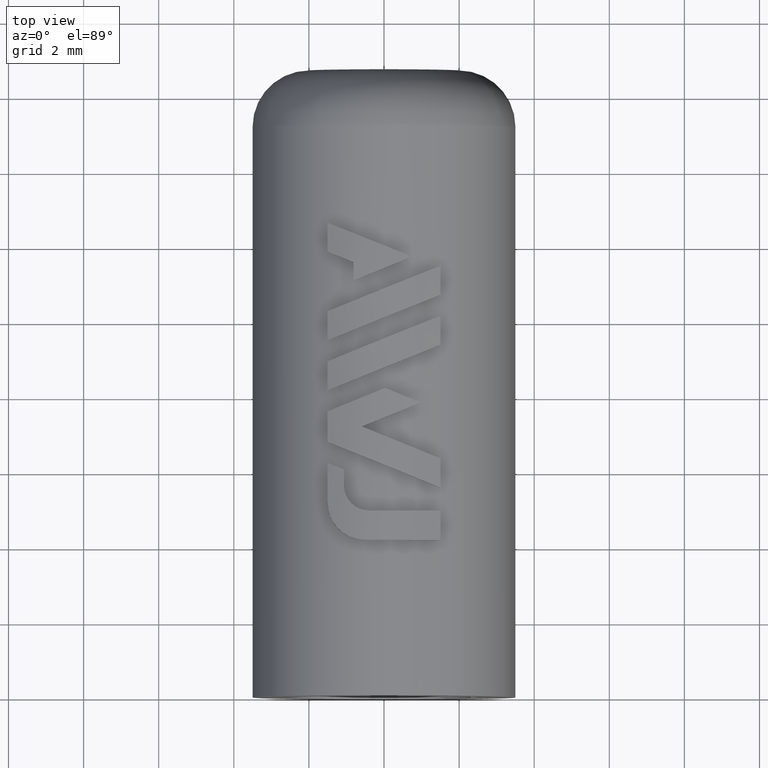
[diagram: clean part render]
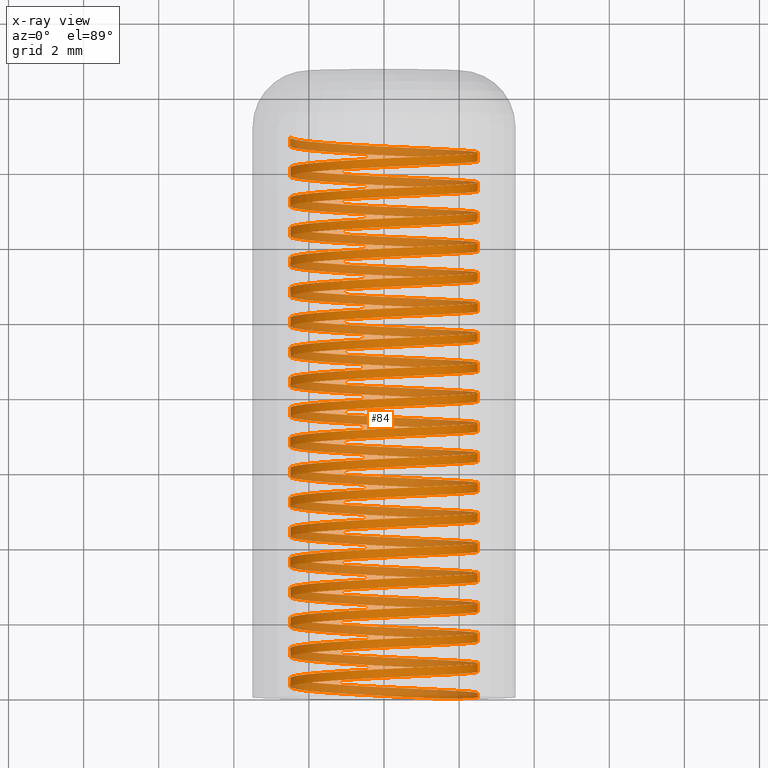
[diagram: x-ray — body ghosted, one internal face saturated and labeled with its STEP entity id]
A machine part, top view, then the same camera in x-ray: the body is ghosted and one INTERNAL B-rep face — a face not visible from any outside direction — is saturated and labeled: STEP entity #84.
In plain terms, the highlighted face is a freeform B-spline surface patch.
Its self-contained STEP definition (entity closure, byte-faithful):
#84=ADVANCED_FACE('',(#169),#170,.F.);
#169=FACE_OUTER_BOUND('',#341,.T.);
#170=B_SPLINE_SURFACE_WITH_KNOTS('',1,3,((#342,#343,#344,#345,#346,#347,#348,#349,#350,#351,#352,#353,#354,#355,#356,#357,#358,#359,#360,#361,#362,#363,#364,#365,#366,#367,#368,#369,#370,#371,#372,#373,#374,#375,#376,#377,#378,#379,#380,#381,#382,#383,#384,#385,#386,#387,#388,#389,#390,#391,#392,#393,#394,#395,#396,#397,#398,#399,#400,#401,#402,#403,#404,#405,#406,#407,#408,#409,#410,#411,#412,#413,#414,#415,#416,#417,#418,#419,#420,#421,#422,#423,#424,#425,#426,#427,#428,#429,#430,#431,#432,#433,#434,#435,#436,#437,#438,#439,#440,#441,#442,#443,#444,#445,#446,#447,#448,#449,#450,#451,#452,#453,#454,#455,#456,#457,#458,#459,#460,#461,#462,#463,#464,#465,#466,#467,#468,#469,#470,#471,#472,#473,#474,#475,#476,#477,#478,#479,#480,#481,#482,#483,#484,#485,#486,#487,#488,#489,#490,#491,#492,#493,#494,#495,#496,#497,#498,#499,#500,#501,#502,#503,#504,#505,#506,#507,#508,#509,#510,#511,#512,#513,#514,#515,#516,#517,#518,#519,#520,#521,#522,#523,#524,#525,#526,#527,#528,#529,#530,#531,#532,#533,#534,#535,#536,#537,#538,#539,#540,#541,#542,#543,#544,#545,#546,#547,#548,#549,#550,#551,#552,#553,#554,#555,#556,#557,#558,#559,#560,#561,#562,#563,#564,#565,#566,#567,#568,#569,#570,#571,#572,#573,#574,#575,#576,#577,#578,#579,#580,#581,#582,#583,#584,#585,#586,#587,#588,#589,#590,#591,#592,#593,#594,#595,#596,#597,#598,#599,#600,#601,#602),(#603,#604,#605,#606,#607,#608,#609,#610,#611,#612,#613,#614,#615,#616,#617,#618,#619,#620,#621,#622,#623,#624,#625,#626,#627,#628,#629,#630,#631,#632,#633,#634,#635,#636,#637,#638,#639,#640,#641,#642,#643,#644,#645,#646,#647,#648,#649,#650,#651,#652,#653,#654,#655,#656,#657,#658,#659,#660,#661,#662,#663,#664,#665,#666,#667,#668,#669,#670,#671,#672,#673,#674,#675,#676,#677,#678,#679,#680,#681,#682,#683,#684,#685,#686,#687,#688,#689,#690,#691,#692,#693,#694,#695,#696,#697,#698,#699,#700,#701,#702,#703,#704,#705,#706,#707,#708,#709,#710,#711,#712,#713,#714,#715,#716,#717,#718,#719,#720,#721,#722,#723,#724,#725,#726,#727,#728,#729,#730,#731,#732,#733,#734,#735,#736,#737,#738,#739,#740,#741,#742,#743,#744,#745,#746,#747,#748,#749,#750,#751,#752,#753,#754,#755,#756,#757,#758,#759,#760,#761,#762,#763,#764,#765,#766,#767,#768,#769,#770,#771,#772,#773,#774,#775,#776,#777,#778,#779,#780,#781,#782,#783,#784,#785,#786,#787,#788,#789,#790,#791,#792,#793,#794,#795,#796,#797,#798,#799,#800,#801,#802,#803,#804,#805,#806,#807,#808,#809,#810,#811,#812,#813,#814,#815,#816,#817,#818,#819,#820,#821,#822,#823,#824,#825,#826,#827,#828,#829,#830,#831,#832,#833,#834,#835,#836,#837,#838,#839,#840,#841,#842,#843,#844,#845,#846,#847,#848,#849,#850,#851,#852,#853,#854,#855,#856,#857,#858,#859,#860,#861,#862,#863)),.UNSPECIFIED.,.F.,.F.,.F.,(2,2),(4,1,1,1,1,1,1,1,1,1,1,1,1,1,1,1,1,1,1,1,1,1,1,1,1,1,1,1,1,1,1,1,1,1,1,1,1,1,1,1,1,1,1,1,1,1,1,1,1,1,1,1,1,1,1,1,1,1,1,1,1,1,1,1,1,1,1,1,1,1,1,1,1,1,1,1,1,1,1,1,1,1,1,1,1,1,1,1,1,1,1,1,1,1,1,1,1,1,1,1,1,1,1,1,1,1,1,1,1,1,1,1,1,1,1,1,1,1,1,1,1,1,1,1,1,1,1,1,1,1,1,1,1,1,1,1,1,1,1,1,1,1,1,1,1,1,1,1,1,1,1,1,1,1,1,1,1,1,1,1,1,1,1,1,1,1,1,1,1,1,1,1,1,1,1,1,1,1,1,1,1,1,1,1,1,1,1,1,1,1,1,1,1,1,1,1,1,1,1,1,1,1,1,1,1,1,1,1,1,1,1,1,1,1,1,1,1,1,1,1,1,1,1,1,1,1,1,1,1,1,1,1,1,1,1,1,1,1,1,1,1,1,1,1,1,1,1,1,1,1,1,1,1,1,1,1,1,1,4),(0.666666666666667,1.0),(0.0,1.0,2.0,3.0,4.0,5.0,6.0,7.0,8.0,9.0,10.0,11.0,12.0,13.0,14.0,15.0,16.0,17.0,18.0,19.0,20.0,21.0,22.0,23.0,24.0,25.0,26.0,27.0,28.0,29.0,30.0,31.0,32.0,33.0,34.0,35.0,36.0,37.0,38.0,39.0,40.0,41.0,42.0,43.0,44.0,45.0,46.0,47.0,48.0,49.0,50.0,51.0,52.0,53.0,54.0,55.0,56.0,57.0,58.0,59.0,60.0,61.0,62.0,63.0,64.0,65.0,66.0,67.0,68.0,69.0,70.0,71.0,72.0,73.0,74.0,75.0,76.0,77.0,78.0,79.0,80.0,81.0,82.0,83.0,84.0,85.0,86.0,87.0,88.0,89.0,90.0,91.0,92.0,93.0,94.0,95.0,96.0,97.0,98.0,99.0,100.0,101.0,102.0,103.0,104.0,105.0,106.0,107.0,108.0,109.0,110.0,111.0,112.0,113.0,114.0,115.0,116.0,117.0,118.0,119.0,120.0,121.0,122.0,123.0,124.0,125.0,126.0,127.0,128.0,129.0,130.0,131.0,132.0,133.0,134.0,135.0,136.0,137.0,138.0,139.0,140.0,141.0,142.0,143.0,144.0,145.0,146.0,147.0,148.0,149.0,150.0,151.0,152.0,153.0,154.0,155.0,156.0,157.0,158.0,159.0,160.0,161.0,162.0,163.0,164.0,165.0,166.0,167.0,168.0,169.0,170.0,171.0,172.0,173.0,174.0,175.0,176.0,177.0,178.0,179.0,180.0,181.0,182.0,183.0,184.0,185.0,186.0,187.0,188.0,189.0,190.0,191.0,192.0,193.0,194.0,195.0,196.0,197.0,198.0,199.0,200.0,201.0,202.0,203.0,204.0,205.0,206.0,207.0,208.0,209.0,210.0,211.0,212.0,213.0,214.0,215.0,216.0,217.0,218.0,219.0,220.0,221.0,222.0,223.0,224.0,225.0,226.0,227.0,228.0,229.0,230.0,231.0,232.0,233.0,234.0,235.0,236.0,237.0,238.0,239.0,240.0,241.0,242.0,243.0,244.0,245.0,246.0,247.0,248.0,249.0,250.0,251.0,252.0,253.0,254.0,255.0,256.0,257.0,258.0),.UNSPECIFIED.);
#341=EDGE_LOOP('',(#2081,#2082,#2083,#2084,#2085));
#342=CARTESIAN_POINT('',(2.5,-0.115470053837911,1.11130722679764E-15));
#343=CARTESIAN_POINT('',(2.5,-0.0965095014151939,-0.372291178013164));
#344=CARTESIAN_POINT('',(2.3279629432803,-0.0580310412304931,-1.1275117598274));
#345=CARTESIAN_POINT('',(1.60531309120325,-0.000761379849518503,-2.02704356236244));
#346=CARTESIAN_POINT('',(0.562274746167707,0.0566283306243802,-2.52425246725875));
#347=CARTESIAN_POINT('',(-0.592971884662868,0.113985873976696,-2.51708750563572));
#348=CARTESIAN_POINT('',(-1.62988084134524,0.171352036517328,-2.00773598350181));
#349=CARTESIAN_POINT('',(-2.34150516333854,0.228715889542024,-1.0976491409926));
#350=CARTESIAN_POINT('',(-2.58582548405207,0.286080361403634,0.0314893521037565));
#351=CARTESIAN_POINT('',(-2.31408076993124,0.343444667447242,1.15434626685317));
#352=CARTESIAN_POINT('',(-1.5805045995768,0.40080901792196,2.04682435330777));
#353=CARTESIAN_POINT('',(-0.531500006820571,0.458173356491323,2.53080869360479));
#354=CARTESIAN_POINT('',(0.623578431343326,0.515537698250733,2.50970810724906));
#355=CARTESIAN_POINT('',(1.65420651730026,0.572902039155369,1.9877337991868));
#356=CARTESIAN_POINT('',(2.35469716795477,0.630266380289041,1.06905851223616));
#357=CARTESIAN_POINT('',(2.58525031336131,0.687630721361343,-0.0629735896245747));
#358=CARTESIAN_POINT('',(2.2998534252611,0.744995062450089,-1.18243776921877));
#359=CARTESIAN_POINT('',(1.55546444432912,0.802359403534429,-2.06591752452629));
#360=CARTESIAN_POINT('',(0.50064442775524,0.85972374461995,-2.53709282697598));
#361=CARTESIAN_POINT('',(-0.65409144916688,0.917088085705155,-2.50192910208429));
#362=CARTESIAN_POINT('',(-1.67828735347211,0.974452426790444,-1.96744413260112));
#363=CARTESIAN_POINT('',(-2.36753990169979,1.03181676787571,-1.04030748800058));
#364=CARTESIAN_POINT('',(-2.58429186253862,1.08918110896098,0.0944480012885464));
#365=CARTESIAN_POINT('',(-2.28528507221259,1.14654545004625,1.21035407813296));
#366=CARTESIAN_POINT('',(-1.53019366080112,1.20390979113153,2.08470434742552));
#367=CARTESIAN_POINT('',(-0.469714617684625,1.2612741322168,2.54300079309153));
#368=CARTESIAN_POINT('',(0.684507484461931,1.31863847330207,2.49377913204966));
#369=CARTESIAN_POINT('',(1.70211934901626,1.37600281438734,1.94686275259332));
#370=CARTESIAN_POINT('',(2.38003159894585,1.43336715547261,1.0114022166033));
#371=CARTESIAN_POINT('',(2.58295023727948,1.49073149655788,-0.125908409046612));
#372=CARTESIAN_POINT('',(2.27037787863585,1.54809583764316,-1.23809092716641));
#373=CARTESIAN_POINT('',(1.50469599458151,1.60546017872842,-2.10318207001228));
#374=CARTESIAN_POINT('',(0.438715162758258,1.66282451981369,-2.54853170702205));
#375=CARTESIAN_POINT('',(-0.714822027439712,1.72018886089897,-2.48525940795277));
#376=CARTESIAN_POINT('',(-1.7256989703484,1.77755320198424,-1.92599271012879));
#377=CARTESIAN_POINT('',(-2.39217040754185,1.83491754306951,-0.982346984019327));
#378=CARTESIAN_POINT('',(-2.5812256365074,1.89228188415479,0.157350148292649));
#379=CARTESIAN_POINT('',(-2.25513405482904,1.94964622524005,1.26564420374808));
#380=CARTESIAN_POINT('',(-1.4789752262239,2.00701056632533,2.1213479525874));
#381=CARTESIAN_POINT('',(-0.407650659283109,2.0643749074106,2.55368474869488));
#382=CARTESIAN_POINT('',(0.745030583345556,2.12173924849587,2.47637119301823));
#383=CARTESIAN_POINT('',(1.74902272130457,2.17910358958114,1.90483709962063));
#384=CARTESIAN_POINT('',(2.40395452765967,2.23646793066641,0.95314609828469));
#385=CARTESIAN_POINT('',(2.57911831592995,2.29383227175169,-0.188768557141958));
#386=CARTESIAN_POINT('',(2.23955586100267,2.35119661283696,-1.29300982253785));
#387=CARTESIAN_POINT('',(1.45303516936136,2.40856095392222,-2.13919930168505));
#388=CARTESIAN_POINT('',(0.37652571321095,2.4659252950075,-2.55845915406554));
#389=CARTESIAN_POINT('',(-0.775128673139553,2.52328963609276,-2.46711580510678));
#390=CARTESIAN_POINT('',(-1.77208714365885,2.58065397717804,-1.88339905782332));
#391=CARTESIAN_POINT('',(-2.41538221206109,2.63801831826331,-0.923803889031461));
#392=CARTESIAN_POINT('',(-2.57662858800074,2.69538265934859,0.220158977169052));
#393=CARTESIAN_POINT('',(-2.22364560694447,2.75274700043386,1.32018372601973));
#394=CARTESIAN_POINT('',(-1.42687967014097,2.81011134151913,2.15673347047547));
#395=CARTESIAN_POINT('',(-0.345344939455356,2.8674756826044,2.56285421523023));
#396=CARTESIAN_POINT('',(0.805111834160669,2.92484002368967,2.45749461652009));
#397=CARTESIAN_POINT('',(1.79488881763609,2.98220436477494,1.86168176336765));
#398=CARTESIAN_POINT('',(2.42645176635677,3.03956870586021,0.894324706845826));
#399=CARTESIAN_POINT('',(2.57375682187315,3.09693304694548,-0.251516754098349));
#400=CARTESIAN_POINT('',(2.20740565167694,3.15429738803076,-1.34716188510346));
#401=CARTESIAN_POINT('',(1.4005126066536,3.21166172911603,-2.17394785915741));
#402=CARTESIAN_POINT('',(0.314112961207547,3.2690260702013,-2.5668692805307));
#403=CARTESIAN_POINT('',(-0.834975620788426,3.32639041128657,-2.4475090537973));
#404=CARTESIAN_POINT('',(-1.81742436241903,3.38375475237184,-1.8396884362893));
#405=CARTESIAN_POINT('',(-2.43716154925756,3.44111909345711,-0.864712922623039));
#406=CARTESIAN_POINT('',(-2.57050344334563,3.49848343454238,0.282837238494274));
#407=CARTESIAN_POINT('',(-2.19083840310754,3.55584777562765,1.37394029972193));
#408=CARTESIAN_POINT('',(-1.37393788835891,3.61321211671292,2.19083991534357));
#409=CARTESIAN_POINT('',(-0.282834409250841,3.6705764577982,2.57050375465093));
#410=CARTESIAN_POINT('',(0.864715605102054,3.72794079888347,2.43716059750353));
#411=CARTESIAN_POINT('',(1.8396904366495,3.78530513996874,1.8174223375515));
#412=CARTESIAN_POINT('',(2.44750997281779,3.84266948105401,0.834972926919309));
#413=CARTESIAN_POINT('',(2.56686893479844,3.90003382213928,-0.314115786450648));
#414=CARTESIAN_POINT('',(2.17394631767172,3.95739816322456,-1.40051499942425));
#415=CARTESIAN_POINT('',(1.3471594555056,4.01476250430982,-2.20740713443909));
#416=CARTESIAN_POINT('',(0.251513921274075,4.0721268453951,-2.57375709870534));
#417=CARTESIAN_POINT('',(-0.894327377537023,4.12949118648037,-2.42645078201032));
#418=CARTESIAN_POINT('',(-1.86168373892393,4.18685552756564,-1.79488676856146));
#419=CARTESIAN_POINT('',(-2.45749550267078,4.24421986865091,-0.805109129300893));
#420=CARTESIAN_POINT('',(-2.56285383512227,4.30158420973618,0.345347760279241));
#421=CARTESIAN_POINT('',(-2.1567318999687,4.35894855082145,1.42688204396446));
#422=CARTESIAN_POINT('',(-1.32018127854726,4.41631289190672,2.22364706001291));
#423=CARTESIAN_POINT('',(-0.22015614118397,4.473677232992,2.57662883031875));
#424=CARTESIAN_POINT('',(0.923806547538859,4.53104157407727,2.41538119526817));
#425=CARTESIAN_POINT('',(1.88340100828275,4.58840591516254,1.77208507068095));
#426=CARTESIAN_POINT('',(2.46711665825628,4.64577025624781,0.77512595769018));
#427=CARTESIAN_POINT('',(2.55845873963824,4.70313459733308,-0.376528529197345));
#428=CARTESIAN_POINT('',(2.13919770239006,4.76049893841835,-1.4530375238857));
#429=CARTESIAN_POINT('',(1.29300735755366,4.81786327950363,-2.23955728416196));
#430=CARTESIAN_POINT('',(0.188765718416558,4.8752276205889,-2.57911852369786));
#431=CARTESIAN_POINT('',(-0.953148744214111,4.93259196167417,-2.40395347857105));
#432=CARTESIAN_POINT('',(-1.90483902469401,4.98995630275944,-1.74902062473075));
#433=CARTESIAN_POINT('',(-2.47637201304005,5.04732064384471,-0.745027857709194));
#434=CARTESIAN_POINT('',(-2.55368430000967,5.10468498492998,0.407653470014509));
#435=CARTESIAN_POINT('',(-2.1213463247413,5.16204932601525,1.47897756110002));
#436=CARTESIAN_POINT('',(-1.26564172161765,5.21941366710053,2.25513544786815));
#437=CARTESIAN_POINT('',(-0.157347307247823,5.2767780081858,2.58122580969442));
#438=CARTESIAN_POINT('',(0.982349616978449,5.33414234927107,2.39216932631306));
#439=CARTESIAN_POINT('',(1.92599460953072,5.39150669035634,1.72569685048949));
#440=CARTESIAN_POINT('',(2.48526019472531,5.44887103144161,0.714819292020495));
#441=CARTESIAN_POINT('',(2.54853122414549,5.50623537252688,-0.438717967817904));
#442=CARTESIAN_POINT('',(2.10318041385644,5.56359971361215,-1.50469830946321));
#443=CARTESIAN_POINT('',(1.23808842825778,5.62096405469743,-2.27037924134823));
#444=CARTESIAN_POINT('',(0.125905566103609,5.67832839578269,-2.58295037585992));
#445=CARTESIAN_POINT('',(-1.01140483620173,5.73569273686797,-2.38003048573721));
#446=CARTESIAN_POINT('',(-1.94686462604217,5.79305707795324,-1.7021172061866));
#447=CARTESIAN_POINT('',(-2.49377988545628,5.85042141903851,-0.684504739665439));
#448=CARTESIAN_POINT('',(-2.54300027609519,5.90778576012378,0.469717416656612));
#449=CARTESIAN_POINT('',(-2.0847026632055,5.96515010120906,1.53019595534514));
#450=CARTESIAN_POINT('',(-1.21035156281663,6.02251444229432,2.2852864043962));
#451=CARTESIAN_POINT('',(-0.094445156868906,6.0798787833796,2.58429196649194));
#452=CARTESIAN_POINT('',(1.04031009384994,6.13724312446487,2.36753875667637));
#453=CARTESIAN_POINT('',(1.96744597981903,6.19460746555014,1.67828518798942));
#454=CARTESIAN_POINT('',(2.50192982201352,6.25197180663541,0.654088695400084));
#455=CARTESIAN_POINT('',(2.53709227593562,6.30933614772068,-0.500647220224587));
#456=CARTESIAN_POINT('',(2.06591581249518,6.36670048880595,-1.55546671819527));
#457=CARTESIAN_POINT('',(1.18243523785517,6.42406482989123,-2.29985472671844));
#458=CARTESIAN_POINT('',(0.0629707441966326,6.48142917097649,-2.58525038267207));
#459=CARTESIAN_POINT('',(-1.06906110412395,6.53879351206177,-2.35469599128636));
#460=CARTESIAN_POINT('',(-1.9877356192522,6.59615785314704,-1.65420432948499));
#461=CARTESIAN_POINT('',(-2.50970879600126,6.65352219423231,-0.623575669028766));
#462=CARTESIAN_POINT('',(-2.53080809964935,6.71088653531758,0.531502792542108));
#463=CARTESIAN_POINT('',(-2.04682264726259,6.76825087640286,1.58050685110306));
#464=CARTESIAN_POINT('',(-1.15434359254289,6.82561521748812,2.31408204826145));
#465=CARTESIAN_POINT('',(-0.0314869948160053,6.8829795585734,2.5858254822954));
#466=CARTESIAN_POINT('',(1.09765360409497,6.94034389965867,2.34150409377137));
#467=CARTESIAN_POINT('',(2.00773053598519,6.99770824074394,1.62987820115598));
#468=CARTESIAN_POINT('',(2.51711565402658,7.05507258182921,0.592970184735363));
#469=CARTESIAN_POINT('',(2.52414867899478,7.11243692291449,-0.562279558635775));
#470=CARTESIAN_POINT('',(2.02742599846231,7.16980126399975,-1.60531264135368));
#471=CARTESIAN_POINT('',(1.12608079204417,7.22716560508503,-2.32796625953212));
#472=CARTESIAN_POINT('',(-1.42315940070619E-06,7.28452994617029,-2.58601718009157));
#473=CARTESIAN_POINT('',(-1.12608335433664,7.34189428725557,-2.32796502010161));
#474=CARTESIAN_POINT('',(-2.02742776536022,7.39925862834084,-1.60531040985139));
#475=CARTESIAN_POINT('',(-2.52414929787038,7.45662296942611,-0.562276780412654));
#476=CARTESIAN_POINT('',(-2.51711500136807,7.51398731051138,0.592972955216834));
#477=CARTESIAN_POINT('',(-2.00772874204656,7.57135165159665,1.62988041097835));
#478=CARTESIAN_POINT('',(-1.09765102690063,7.62871599268193,2.34150530191045));
#479=CARTESIAN_POINT('',(0.031489840923793,7.6860803337672,2.58582544763744));
#480=CARTESIAN_POINT('',(1.15434613955359,7.74344467485247,2.31408077772331));
#481=CARTESIAN_POINT('',(2.04682438685783,7.80080901593774,1.58050459825172));
#482=CARTESIAN_POINT('',(2.53080868465026,7.85817335702301,0.531500006989259));
#483=CARTESIAN_POINT('',(2.5097081096566,7.91553769810828,-0.623578431357776));
#484=CARTESIAN_POINT('',(1.98773379853885,7.97290203919355,-1.65420651729979));
#485=CARTESIAN_POINT('',(1.06905851240987,8.03026638027883,-2.35469716795489));
#486=CARTESIAN_POINT('',(-0.0629735896714213,8.0876307213641,-2.58525031336129));
#487=CARTESIAN_POINT('',(-1.18243776920641,8.14499506244937,-2.29985342526104));
#488=CARTESIAN_POINT('',(-2.06591752452981,8.20235940353464,-1.5554644443289));
#489=CARTESIAN_POINT('',(-2.53709282697511,8.25972374461991,-0.500644427755071));
#490=CARTESIAN_POINT('',(-2.50192910208448,8.31708808570518,0.654091449167129));
#491=CARTESIAN_POINT('',(-1.96744413260093,8.37445242679045,1.67828735347227));
#492=CARTESIAN_POINT('',(-1.04030748800037,8.43181676787573,2.3675399016999));
#493=CARTESIAN_POINT('',(0.0944480012887809,8.489181108961,2.58429186253861));
#494=CARTESIAN_POINT('',(1.21035407813313,8.54654545004627,2.28528507221249));
#495=CARTESIAN_POINT('',(2.08470434742567,8.60390979113154,1.53019366080091));
#496=CARTESIAN_POINT('',(2.54300079309157,8.66127413221681,0.46971461768443));
#497=CARTESIAN_POINT('',(2.4937791320496,8.71863847330208,-0.684507484462179));
#498=CARTESIAN_POINT('',(1.94686275259319,8.77600281438735,-1.70211934901641));
#499=CARTESIAN_POINT('',(1.01140221660306,8.83336715547262,-2.38003159894595));
#500=CARTESIAN_POINT('',(-0.125908409046816,8.8907314965579,-2.58295023727948));
#501=CARTESIAN_POINT('',(-1.23809092716665,8.94809583764317,-2.27037787863571));
#502=CARTESIAN_POINT('',(-2.10318207001237,9.00546017872844,-1.50469599458138));
#503=CARTESIAN_POINT('',(-2.5485317070221,9.06282451981371,-0.438715162758032));
#504=CARTESIAN_POINT('',(-2.48525940795272,9.12018886089898,0.71482202743989));
#505=CARTESIAN_POINT('',(-1.92599271012863,9.17755320198425,1.72569897034857));
#506=CARTESIAN_POINT('',(-0.982346984019149,9.23491754306953,2.39217040754192));
#507=CARTESIAN_POINT('',(0.157350148292883,9.29228188415479,2.58122563650739));
#508=CARTESIAN_POINT('',(1.26564420374826,9.34964622524007,2.25513405482892));
#509=CARTESIAN_POINT('',(2.1213479525875,9.40701056632533,1.47897522622376));
#510=CARTESIAN_POINT('',(2.55368474869491,9.46437490741061,0.407650659282887));
#511=CARTESIAN_POINT('',(2.47637119301818,9.52173924849588,-0.745030583345736));
#512=CARTESIAN_POINT('',(1.90483709962047,9.57910358958115,-1.74902272130475));
#513=CARTESIAN_POINT('',(0.95314609828451,9.63646793066642,-2.40395452765974));
#514=CARTESIAN_POINT('',(-0.188768557142199,9.69383227175169,-2.57911831592993));
#515=CARTESIAN_POINT('',(-1.29300982253803,9.75119661283697,-2.23955586100256));
#516=CARTESIAN_POINT('',(-2.13919930168516,9.80856095392224,-1.4530351693612));
#517=CARTESIAN_POINT('',(-2.55845915406558,9.86592529500751,-0.376525713210721));
#518=CARTESIAN_POINT('',(-2.46711580510673,9.92328963609278,0.775128673139728));
#519=CARTESIAN_POINT('',(-1.88339905782317,9.98065397717805,1.77208714365902));
#520=CARTESIAN_POINT('',(-0.923803889031275,10.0380183182633,2.41538221206116));
#521=CARTESIAN_POINT('',(0.220158977169293,10.0953826593486,2.57662858800072));
#522=CARTESIAN_POINT('',(1.3201837260199,10.1527470004339,2.22364560694435));
#523=CARTESIAN_POINT('',(2.15673347047558,10.2101113415191,1.42687967014081));
#524=CARTESIAN_POINT('',(2.56285421523026,10.2674756826044,0.345344939455123));
#525=CARTESIAN_POINT('',(2.45749461652003,10.3248400236897,-0.805111834160848));
#526=CARTESIAN_POINT('',(1.86168176336749,10.382204364775,-1.79488881763626));
#527=CARTESIAN_POINT('',(0.89432470684564,10.4395687058602,-2.42645176635684));
#528=CARTESIAN_POINT('',(-0.251516754098587,10.4969330469455,-2.57375682187314));
#529=CARTESIAN_POINT('',(-1.34716188510364,10.5542973880308,-2.20740565167681));
#530=CARTESIAN_POINT('',(-2.17394785915751,10.611661729116,-1.40051260665346));
#531=CARTESIAN_POINT('',(-2.56686928053073,10.6690260702013,-0.314112961207314));
#532=CARTESIAN_POINT('',(-2.44750905379724,10.7263904112866,0.8349756207886));
#533=CARTESIAN_POINT('',(-1.83968843628914,10.7837547523718,1.81742436241919));
#534=CARTESIAN_POINT('',(-0.864712922622852,10.8411190934571,2.43716154925762));
#535=CARTESIAN_POINT('',(0.282837238494514,10.8984834345424,2.5705034433456));
#536=CARTESIAN_POINT('',(1.37394029972211,10.9558477756277,2.19083840310742));
#537=CARTESIAN_POINT('',(2.19083991534367,11.0132121167129,1.37393788835876));
#538=CARTESIAN_POINT('',(2.57050375465095,11.0705764577982,0.282834409250603));
#539=CARTESIAN_POINT('',(2.43716059750347,11.1279407988835,-0.86471560510223));
#540=CARTESIAN_POINT('',(1.81742233755132,11.1853051399687,-1.83969043664967));
#541=CARTESIAN_POINT('',(0.834972926919137,11.242669481054,-2.44750997281786));
#542=CARTESIAN_POINT('',(-0.314115786450893,11.3000338221393,-2.56686893479841));
#543=CARTESIAN_POINT('',(-1.40051499942441,11.3573981632246,-2.17394631767162));
#544=CARTESIAN_POINT('',(-2.20740713443923,11.4147625043098,-1.34715945550539));
#545=CARTESIAN_POINT('',(-2.57375709870535,11.4721268453951,-0.251513921273858));
#546=CARTESIAN_POINT('',(-2.42645078201026,11.5294911864804,0.894327377537199));
#547=CARTESIAN_POINT('',(-1.79488676856129,11.5868555275656,1.86168373892409));
#548=CARTESIAN_POINT('',(-0.805109129300716,11.6442198686509,2.45749550267084));
#549=CARTESIAN_POINT('',(0.345347760279475,11.7015842097362,2.56285383512223));
#550=CARTESIAN_POINT('',(1.42688204396461,11.7589485508215,2.15673189996859));
#551=CARTESIAN_POINT('',(2.22364706001305,11.8163128919067,1.32018127854704));
#552=CARTESIAN_POINT('',(2.57662883031876,11.873677232992,0.220156141183747));
#553=CARTESIAN_POINT('',(2.41538119526811,11.9310415740773,-0.923806547539034));
#554=CARTESIAN_POINT('',(1.77208507068076,11.9884059151625,-1.88340100828292));
#555=CARTESIAN_POINT('',(0.775125957689987,12.0457702562478,-2.46711665825634));
#556=CARTESIAN_POINT('',(-0.376528529197594,12.1031345973331,-2.5584587396382));
#557=CARTESIAN_POINT('',(-1.45303752388587,12.1604989384184,-2.13919770238994));
#558=CARTESIAN_POINT('',(-2.23955728416208,12.2178632795036,-1.29300735755345));
#559=CARTESIAN_POINT('',(-2.57911852369788,12.2752276205889,-0.188765718416339));
#560=CARTESIAN_POINT('',(-2.40395347857098,12.3325919616742,0.953148744214281));
#561=CARTESIAN_POINT('',(-1.74902062473056,12.3899563027594,1.90483902469418));
#562=CARTESIAN_POINT('',(-0.745027857708998,12.4473206438447,2.47637201304011));
#563=CARTESIAN_POINT('',(0.407653470014761,12.50468498493,2.55368430000964));
#564=CARTESIAN_POINT('',(1.47897756110019,12.5620493260153,2.12134632474117));
#565=CARTESIAN_POINT('',(2.25513544786828,12.6194136671005,1.26564172161743));
#566=CARTESIAN_POINT('',(2.58122580969443,12.6767780081858,0.157347307247602));
#567=CARTESIAN_POINT('',(2.39216932631299,12.7341423492711,-0.982349616978627));
#568=CARTESIAN_POINT('',(1.72569685048932,12.7915066903564,-1.92599460953088));
#569=CARTESIAN_POINT('',(0.714819292020295,12.8488710314416,-2.48526019472537));
#570=CARTESIAN_POINT('',(-0.438717967818151,12.9062353725269,-2.54853122414545));
#571=CARTESIAN_POINT('',(-1.50469830946337,12.9635997136122,-2.10318041385632));
#572=CARTESIAN_POINT('',(-2.27037924134835,13.0209640546974,-1.23808842825756));
#573=CARTESIAN_POINT('',(-2.58295037585992,13.0783283957827,-0.125905566103392));
#574=CARTESIAN_POINT('',(-2.38003048573714,13.135692736868,1.01140483620191));
#575=CARTESIAN_POINT('',(-1.70211720618643,13.1930570779532,1.94686462604231));
#576=CARTESIAN_POINT('',(-0.684504739665236,13.2504214190385,2.49377988545633));
#577=CARTESIAN_POINT('',(0.46971741665686,13.3077857601238,2.54300027609514));
#578=CARTESIAN_POINT('',(1.53019595534531,13.3651501012091,2.08470266320538));
#579=CARTESIAN_POINT('',(2.28528640439632,13.4225144422943,1.21035156281641));
#580=CARTESIAN_POINT('',(2.58429196649194,13.4798787833796,0.0944451568686776));
#581=CARTESIAN_POINT('',(2.3675387566763,13.5372431244649,-1.0403100938501));
#582=CARTESIAN_POINT('',(1.67828518798925,13.5946074655501,-1.96744597981926));
#583=CARTESIAN_POINT('',(0.654088695399893,13.6519718066354,-2.50192982201328));
#584=CARTESIAN_POINT('',(-0.500647220224853,13.7093361477206,-2.53709227593668));
#585=CARTESIAN_POINT('',(-1.5554667181954,13.7667004888062,-2.06591581249091));
#586=CARTESIAN_POINT('',(-2.29985472671859,13.8240648298905,-1.18243523787046));
#587=CARTESIAN_POINT('',(-2.58525038267205,13.8814291709792,-0.0629707441384191));
#588=CARTESIAN_POINT('',(-2.35469599128631,13.9387935120516,1.06906110390757));
#589=CARTESIAN_POINT('',(-1.65420432948418,13.9961578531852,1.9877356200617));
#590=CARTESIAN_POINT('',(-0.623575669042823,14.0535221940899,2.5097087929706));
#591=CARTESIAN_POINT('',(0.531502792711258,14.1108865358492,2.53080811099074));
#592=CARTESIAN_POINT('',(1.58050684977831,14.1682508744188,2.04682260506657));
#593=CARTESIAN_POINT('',(2.31408205605372,14.2256152248928,1.1543437479302));
#594=CARTESIAN_POINT('',(2.58582544588077,14.2829795309386,0.031486428632275));
#595=CARTESIAN_POINT('',(2.3415042323431,14.3403440027939,-1.09765155267726));
#596=CARTESIAN_POINT('',(1.62987777078875,14.3977078558355,-2.00773798883142));
#597=CARTESIAN_POINT('',(0.592971255288986,14.4550740183362,-2.51708830988022));
#598=CARTESIAN_POINT('',(-0.562281592881171,14.5124315617755,-2.52425017482034));
#599=CARTESIAN_POINT('',(-1.6053099600021,14.5698212721169,-2.0270463804826));
#600=CARTESIAN_POINT('',(-2.32796833635365,14.6270909337062,-1.127503005248));
#601=CARTESIAN_POINT('',(-2.5,14.6655693937394,-0.372287974476588));
#602=CARTESIAN_POINT('',(-2.5,14.6845299461621,3.84700159770962E-13));
#603=CARTESIAN_POINT('',(2.5,0.115470053837911,-1.11130722679764E-15));
#604=CARTESIAN_POINT('',(2.5,0.134430606260627,-0.372287974476978));
#605=CARTESIAN_POINT('',(2.32796833635343,0.172909066293786,-1.12750300524838));
#606=CARTESIAN_POINT('',(1.60530996000181,0.230178727883095,-2.02704638048283));
#607=CARTESIAN_POINT('',(0.562281592880757,0.287568438224527,-2.52425017482043));
#608=CARTESIAN_POINT('',(-0.592971255289346,0.344925981663858,-2.51708830988012));
#609=CARTESIAN_POINT('',(-1.62987777078907,0.402292144164566,-2.00773798883117));
#610=CARTESIAN_POINT('',(-2.34150423234328,0.459655997206125,-1.09765155267687));
#611=CARTESIAN_POINT('',(-2.58582544588077,0.517020469061413,0.031486428632649));
#612=CARTESIAN_POINT('',(-2.31408205605354,0.574384775107213,1.15434374793057));
#613=CARTESIAN_POINT('',(-1.58050684977803,0.631749125581221,2.0468226050668));
#614=CARTESIAN_POINT('',(-0.531502792710861,0.689113464150801,2.53080811099083));
#615=CARTESIAN_POINT('',(0.623575669043164,0.746477805910147,2.50970879297052));
#616=CARTESIAN_POINT('',(1.65420432948449,0.803842146814801,1.98773562006145));
#617=CARTESIAN_POINT('',(2.35469599128645,0.861206487948469,1.06906110390726));
#618=CARTESIAN_POINT('',(2.58525038267205,0.918570829020772,-0.062970744138787));
#619=CARTESIAN_POINT('',(2.2998547267184,0.975935170109518,-1.18243523787081));
#620=CARTESIAN_POINT('',(1.55546671819512,1.03329951119386,-2.06591581249112));
#621=CARTESIAN_POINT('',(0.500647220224472,1.09066385227938,-2.53709227593675));
#622=CARTESIAN_POINT('',(-0.654088695400218,1.14802819336458,-2.50192982201319));
#623=CARTESIAN_POINT('',(-1.67828518798954,1.20539253444987,-1.96744597981901));
#624=CARTESIAN_POINT('',(-2.36753875667642,1.26275687553514,-1.04031009384979));
#625=CARTESIAN_POINT('',(-2.58429196649193,1.32012121662041,0.094445156869035));
#626=CARTESIAN_POINT('',(-2.28528640439613,1.37748555770568,1.21035156281675));
#627=CARTESIAN_POINT('',(-1.53019595534504,1.43484989879095,2.08470266320558));
#628=CARTESIAN_POINT('',(-0.46971741665648,1.49221423987623,2.54300027609521));
#629=CARTESIAN_POINT('',(0.684504739665553,1.5495785809615,2.49377988545625));
#630=CARTESIAN_POINT('',(1.70211720618671,1.60694292204677,1.94686462604207));
#631=CARTESIAN_POINT('',(2.38003048573726,1.66430726313204,1.01140483620161));
#632=CARTESIAN_POINT('',(2.58295037585992,1.72167160421731,-0.125905566103753));
#633=CARTESIAN_POINT('',(2.27037924134816,1.77903594530258,-1.23808842825789));
#634=CARTESIAN_POINT('',(1.5046983094631,1.83640028638785,-2.10318041385652));
#635=CARTESIAN_POINT('',(0.438717967817772,1.89376462747313,-2.54853122414551));
#636=CARTESIAN_POINT('',(-0.714819292020612,1.95112896855839,-2.48526019472528));
#637=CARTESIAN_POINT('',(-1.72569685048961,2.00849330964367,-1.92599460953062));
#638=CARTESIAN_POINT('',(-2.39216932631311,2.06585765072894,-0.982349616978322));
#639=CARTESIAN_POINT('',(-2.58122580969442,2.12322199181421,0.157347307247965));
#640=CARTESIAN_POINT('',(-2.25513544786808,2.18058633289948,1.26564172161777));
#641=CARTESIAN_POINT('',(-1.47897756109991,2.23795067398475,2.12134632474138));
#642=CARTESIAN_POINT('',(-0.407653470014374,2.29531501507003,2.55368430000969));
#643=CARTESIAN_POINT('',(0.745027857709315,2.3526793561553,2.47637201304001));
#644=CARTESIAN_POINT('',(1.74902062473084,2.41004369724057,1.90483902469393));
#645=CARTESIAN_POINT('',(2.4039534785711,2.46740803832584,0.953148744213979));
#646=CARTESIAN_POINT('',(2.57911852369786,2.52477237941111,-0.188765718416693));
#647=CARTESIAN_POINT('',(2.23955728416188,2.58213672049638,-1.29300735755378));
#648=CARTESIAN_POINT('',(1.4530375238856,2.63950106158165,-2.13919770239012));
#649=CARTESIAN_POINT('',(0.376528529197218,2.69686540266692,-2.55845873963825));
#650=CARTESIAN_POINT('',(-0.775125957690303,2.7542297437522,-2.46711665825625));
#651=CARTESIAN_POINT('',(-1.77208507068104,2.81159408483746,-1.88340100828266));
#652=CARTESIAN_POINT('',(-2.41538119526822,2.86895842592274,-0.92380654753873));
#653=CARTESIAN_POINT('',(-2.57662883031874,2.92632276700801,0.220156141184105));
#654=CARTESIAN_POINT('',(-2.22364706001285,2.98368710809329,1.32018127854738));
#655=CARTESIAN_POINT('',(-1.42688204396433,3.04105144917855,2.15673189996878));
#656=CARTESIAN_POINT('',(-0.345347760279098,3.09841579026383,2.56285383512228));
#657=CARTESIAN_POINT('',(0.80510912930103,3.1557801313491,2.45749550267074));
#658=CARTESIAN_POINT('',(1.79488676856157,3.21314447243437,1.86168373892382));
#659=CARTESIAN_POINT('',(2.42645078201037,3.27050881351964,0.894327377536897));
#660=CARTESIAN_POINT('',(2.57375709870532,3.32787315460491,-0.251513921274213));
#661=CARTESIAN_POINT('',(2.20740713443903,3.38523749569018,-1.34715945550572));
#662=CARTESIAN_POINT('',(1.40051499942412,3.44260183677546,-2.17394631767181));
#663=CARTESIAN_POINT('',(0.314115786450518,3.49996617786072,-2.56686893479845));
#664=CARTESIAN_POINT('',(-0.834972926919452,3.557330518946,-2.44750997281775));
#665=CARTESIAN_POINT('',(-1.81742233755159,3.61469486003126,-1.8396904366494));
#666=CARTESIAN_POINT('',(-2.43716059750358,3.67205920111654,-0.864715605101928));
#667=CARTESIAN_POINT('',(-2.57050375465091,3.72942354220181,0.282834409250973));
#668=CARTESIAN_POINT('',(-2.1908399153435,3.78678788328709,1.37393788835903));
#669=CARTESIAN_POINT('',(-1.37394029972181,3.84415222437235,2.19083840310762));
#670=CARTESIAN_POINT('',(-0.282837238494141,3.90151656545763,2.57050344334564));
#671=CARTESIAN_POINT('',(0.864712922623165,3.9588809065429,2.43716154925751));
#672=CARTESIAN_POINT('',(1.8396884362894,4.01624524762817,1.81742436241893));
#673=CARTESIAN_POINT('',(2.44750905379735,4.07360958871344,0.834975620788284));
#674=CARTESIAN_POINT('',(2.56686928053068,4.13097392979872,-0.314112961207676));
#675=CARTESIAN_POINT('',(2.17394785915733,4.18833827088398,-1.40051260665373));
#676=CARTESIAN_POINT('',(1.34716188510335,4.24570261196925,-2.207405651677));
#677=CARTESIAN_POINT('',(0.251516754098211,4.30306695305453,-2.57375682187317));
#678=CARTESIAN_POINT('',(-0.894324706845951,4.3604312941398,-2.42645176635673));
#679=CARTESIAN_POINT('',(-1.86168176336775,4.41779563522507,-1.79488881763599));
#680=CARTESIAN_POINT('',(-2.45749461652014,4.47515997631034,-0.805111834160531));
#681=CARTESIAN_POINT('',(-2.56285421523021,4.53252431739561,0.345344939455498));
#682=CARTESIAN_POINT('',(-2.15673347047539,4.58988865848089,1.42687967014109));
#683=CARTESIAN_POINT('',(-1.32018372601961,4.64725299956616,2.22364560694453));
#684=CARTESIAN_POINT('',(-0.220158977168917,4.70461734065143,2.57662858800074));
#685=CARTESIAN_POINT('',(0.92380388903159,4.7619816817367,2.41538221206103));
#686=CARTESIAN_POINT('',(1.8833990578234,4.81934602282197,1.77208714365876));
#687=CARTESIAN_POINT('',(2.46711580510682,4.87671036390724,0.77512867313943));
#688=CARTESIAN_POINT('',(2.55845915406552,4.93407470499251,-0.376525713211077));
#689=CARTESIAN_POINT('',(2.13919930168498,4.99143904607778,-1.45303516936146));
#690=CARTESIAN_POINT('',(1.29300982253773,5.04880338716306,-2.23955586100274));
#691=CARTESIAN_POINT('',(0.188768557141824,5.10616772824832,-2.57911831592995));
#692=CARTESIAN_POINT('',(-0.953146098284822,5.1635320693336,-2.40395452765962));
#693=CARTESIAN_POINT('',(-1.90483709962071,5.22089641041887,-1.74902272130449));
#694=CARTESIAN_POINT('',(-2.47637119301827,5.27826075150414,-0.745030583345435));
#695=CARTESIAN_POINT('',(-2.55368474869486,5.33562509258941,0.407650659283245));
#696=CARTESIAN_POINT('',(-2.12134795258731,5.39298943367468,1.47897522622401));
#697=CARTESIAN_POINT('',(-1.26564420374796,5.45035377475995,2.25513405482911));
#698=CARTESIAN_POINT('',(-0.157350148292507,5.50771811584523,2.58122563650741));
#699=CARTESIAN_POINT('',(0.982346984019456,5.5650824569305,2.39217040754179));
#700=CARTESIAN_POINT('',(1.92599271012889,5.62244679801577,1.72569897034829));
#701=CARTESIAN_POINT('',(2.4852594079528,5.67981113910104,0.714822027439597));
#702=CARTESIAN_POINT('',(2.54853170702204,5.73717548018631,-0.438715162758391));
#703=CARTESIAN_POINT('',(2.1031820700122,5.79453982127158,-1.50469599458163));
#704=CARTESIAN_POINT('',(1.23809092716629,5.85190416235686,-2.27037787863591));
#705=CARTESIAN_POINT('',(0.125908409046468,5.90926850344212,-2.58295023727949));
#706=CARTESIAN_POINT('',(-1.01140221660342,5.9666328445274,-2.38003159894579));
#707=CARTESIAN_POINT('',(-1.94686275259342,6.02399718561267,-1.70211934901614));
#708=CARTESIAN_POINT('',(-2.49377913204969,6.08136152669794,-0.684507484461817));
#709=CARTESIAN_POINT('',(-2.54300079309151,6.13872586778321,0.469714617684757));
#710=CARTESIAN_POINT('',(-2.08470434742544,6.19609020886848,1.53019366080121));
#711=CARTESIAN_POINT('',(-1.21035407813284,6.25345454995376,2.28528507221265));
#712=CARTESIAN_POINT('',(-0.0944480012884155,6.31081889103903,2.58429186253863));
#713=CARTESIAN_POINT('',(1.04030748800073,6.3681832321243,2.36753990169974));
#714=CARTESIAN_POINT('',(1.96744413260116,6.42554757320957,1.678287353472));
#715=CARTESIAN_POINT('',(2.50192910208457,6.48291191429484,0.654091449166767));
#716=CARTESIAN_POINT('',(2.53709282697505,6.54027625538011,-0.500644427755397));
#717=CARTESIAN_POINT('',(2.06591752452958,6.59764059646538,-1.5554644443292));
#718=CARTESIAN_POINT('',(1.18243776920612,6.65500493755066,-2.29985342526119));
#719=CARTESIAN_POINT('',(0.0629735896710488,6.71236927863592,-2.58525031336131));
#720=CARTESIAN_POINT('',(-1.0690585124102,6.7697336197212,-2.35469716795474));
#721=CARTESIAN_POINT('',(-1.98773379853908,6.82709796080647,-1.6542065172995));
#722=CARTESIAN_POINT('',(-2.50970810965669,6.88446230189174,-0.623578431357451));
#723=CARTESIAN_POINT('',(-2.53080868465019,6.94182664297701,0.531500006989623));
#724=CARTESIAN_POINT('',(-2.0468243868576,6.99919098406228,1.58050459825201));
#725=CARTESIAN_POINT('',(-1.15434613955327,7.05655532514755,2.31408077772346));
#726=CARTESIAN_POINT('',(-0.0314898409234282,7.11391966623283,2.58582544763744));
#727=CARTESIAN_POINT('',(1.09765102690096,7.1712840073181,2.34150530191029));
#728=CARTESIAN_POINT('',(2.00772874204679,7.22864834840337,1.62988041097806));
#729=CARTESIAN_POINT('',(2.51711500136815,7.28601268948864,0.592972955216479));
#730=CARTESIAN_POINT('',(2.52414929787031,7.34337703057392,-0.56227678041301));
#731=CARTESIAN_POINT('',(2.02742776536,7.40074137165918,-1.60531040985167));
#732=CARTESIAN_POINT('',(1.12608335433632,7.45810571274446,-2.32796502010177));
#733=CARTESIAN_POINT('',(1.42315903528442E-06,7.51547005382972,-2.58601718009157));
#734=CARTESIAN_POINT('',(-1.1260807920445,7.572834394915,-2.32796625953196));
#735=CARTESIAN_POINT('',(-2.02742599846253,7.63019873600027,-1.60531264135339));
#736=CARTESIAN_POINT('',(-2.52414867899487,7.68756307708554,-0.562279558635419));
#737=CARTESIAN_POINT('',(-2.5171156540265,7.74492741817081,0.592970184735719));
#738=CARTESIAN_POINT('',(-2.00773053598495,7.80229175925608,1.62987820115625));
#739=CARTESIAN_POINT('',(-1.09765360409464,7.85965610034135,2.34150409377153));
#740=CARTESIAN_POINT('',(0.0314869948163708,7.91702044142663,2.5858254822954));
#741=CARTESIAN_POINT('',(1.15434359254322,7.97438478251189,2.31408204826129));
#742=CARTESIAN_POINT('',(2.04682264726282,8.03174912359717,1.58050685110278));
#743=CARTESIAN_POINT('',(2.53080809964941,8.08911346468244,0.531502792541744));
#744=CARTESIAN_POINT('',(2.50970879600118,8.14647780576771,-0.623575669029091));
#745=CARTESIAN_POINT('',(1.98773561925196,8.20384214685298,-1.65420432948527));
#746=CARTESIAN_POINT('',(1.06906110412362,8.26120648793826,-2.35469599128651));
#747=CARTESIAN_POINT('',(-0.0629707441970054,8.31857082902353,-2.58525038267206));
#748=CARTESIAN_POINT('',(-1.18243523785546,8.37593517010879,-2.2998547267183));
#749=CARTESIAN_POINT('',(-2.06591581249541,8.43329951119407,-1.55546671819497));
#750=CARTESIAN_POINT('',(-2.53709227593568,8.49066385227934,-0.500647220224261));
#751=CARTESIAN_POINT('',(-2.50192982201342,8.54802819336461,0.654088695400447));
#752=CARTESIAN_POINT('',(-1.9674459798188,8.60539253444988,1.67828518798969));
#753=CARTESIAN_POINT('',(-1.04031009384958,8.66275687553515,2.36753875667653));
#754=CARTESIAN_POINT('',(0.0944451568692706,8.72012121662042,2.58429196649192));
#755=CARTESIAN_POINT('',(1.21035156281693,8.7774855577057,2.28528640439604));
#756=CARTESIAN_POINT('',(2.08470266320573,8.83484989879096,1.53019595534484));
#757=CARTESIAN_POINT('',(2.54300027609525,8.89221423987624,0.469717416656285));
#758=CARTESIAN_POINT('',(2.49377988545618,8.94957858096151,-0.6845047396658));
#759=CARTESIAN_POINT('',(1.94686462604193,9.00694292204678,-1.70211720618687));
#760=CARTESIAN_POINT('',(1.01140483620137,9.06430726313205,-2.38003048573737));
#761=CARTESIAN_POINT('',(-0.125905566103957,9.12167160421733,-2.58295037585991));
#762=CARTESIAN_POINT('',(-1.23808842825813,9.1790359453026,-2.27037924134803));
#763=CARTESIAN_POINT('',(-2.10318041385661,9.23640028638787,-1.50469830946296));
#764=CARTESIAN_POINT('',(-2.54853122414556,9.29376462747314,-0.438717967817545));
#765=CARTESIAN_POINT('',(-2.48526019472523,9.35112896855841,0.714819292020789));
#766=CARTESIAN_POINT('',(-1.92599460953046,9.40849330964368,1.72569685048978));
#767=CARTESIAN_POINT('',(-0.982349616978143,9.46585765072896,2.39216932631318));
#768=CARTESIAN_POINT('',(0.1573473072482,9.52322199181422,2.5812258096944));
#769=CARTESIAN_POINT('',(1.26564172161795,9.58058633289949,2.25513544786797));
#770=CARTESIAN_POINT('',(2.12134632474148,9.63795067398476,1.47897756109976));
#771=CARTESIAN_POINT('',(2.55368430000973,9.69531501507004,0.407653470014152));
#772=CARTESIAN_POINT('',(2.47637201303996,9.75267935615531,-0.745027857709495));
#773=CARTESIAN_POINT('',(1.90483902469376,9.81004369724058,-1.74902062473102));
#774=CARTESIAN_POINT('',(0.953148744213799,9.86740803832585,-2.40395347857117));
#775=CARTESIAN_POINT('',(-0.188765718416933,9.92477237941112,-2.57911852369784));
#776=CARTESIAN_POINT('',(-1.29300735755395,9.98213672049639,-2.23955728416178));
#777=CARTESIAN_POINT('',(-2.13919770239024,10.0395010615817,-1.45303752388544));
#778=CARTESIAN_POINT('',(-2.55845873963829,10.0968654026669,-0.376528529196988));
#779=CARTESIAN_POINT('',(-2.46711665825619,10.1542297437522,0.775125957690478));
#780=CARTESIAN_POINT('',(-1.88340100828251,10.2115940848375,1.77208507068121));
#781=CARTESIAN_POINT('',(-0.923806547538545,10.2689584259227,2.41538119526829));
#782=CARTESIAN_POINT('',(0.220156141184346,10.326322767008,2.57662883031872));
#783=CARTESIAN_POINT('',(1.32018127854755,10.3836871080933,2.22364706001273));
#784=CARTESIAN_POINT('',(2.15673189996889,10.4410514491786,1.42688204396418));
#785=CARTESIAN_POINT('',(2.56285383512231,10.4984157902638,0.345347760278865));
#786=CARTESIAN_POINT('',(2.45749550267068,10.5557801313491,-0.805109129301209));
#787=CARTESIAN_POINT('',(1.86168373892366,10.6131444724344,-1.79488676856173));
#788=CARTESIAN_POINT('',(0.894327377536712,10.6705088135196,-2.42645078201045));
#789=CARTESIAN_POINT('',(-0.25151392127445,10.7278731546049,-2.5737570987053));
#790=CARTESIAN_POINT('',(-1.34715945550589,10.7852374956902,-2.20740713443892));
#791=CARTESIAN_POINT('',(-2.17394631767191,10.8426018367755,-1.40051499942398));
#792=CARTESIAN_POINT('',(-2.56686893479848,10.8999661778607,-0.314115786450285));
#793=CARTESIAN_POINT('',(-2.44750997281769,10.957330518946,0.834972926919625));
#794=CARTESIAN_POINT('',(-1.83969043664924,11.0146948600313,1.81742233755176));
#795=CARTESIAN_POINT('',(-0.864715605101741,11.0720592011166,2.43716059750364));
#796=CARTESIAN_POINT('',(0.282834409251213,11.1294235422018,2.57050375465089));
#797=CARTESIAN_POINT('',(1.3739378883592,11.1867878832871,2.19083991534337));
#798=CARTESIAN_POINT('',(2.19083840310771,11.2441522243724,1.37394029972166));
#799=CARTESIAN_POINT('',(2.57050344334567,11.3015165654576,0.282837238493904));
#800=CARTESIAN_POINT('',(2.43716154925745,11.3588809065429,-0.864712922623342));
#801=CARTESIAN_POINT('',(1.81742436241876,11.4162452476282,-1.83968843628957));
#802=CARTESIAN_POINT('',(0.834975620788112,11.4736095887134,-2.44750905379741));
#803=CARTESIAN_POINT('',(-0.314112961207921,11.5309739297987,-2.56686928053066));
#804=CARTESIAN_POINT('',(-1.40051260665389,11.588338270884,-2.17394785915723));
#805=CARTESIAN_POINT('',(-2.20740565167713,11.6457026119693,-1.34716188510314));
#806=CARTESIAN_POINT('',(-2.57375682187319,11.7030669530545,-0.251516754097996));
#807=CARTESIAN_POINT('',(-2.42645176635667,11.7604312941398,0.894324706846127));
#808=CARTESIAN_POINT('',(-1.79488881763582,11.8177956352251,1.86168176336791));
#809=CARTESIAN_POINT('',(-0.805111834160354,11.8751599763103,2.45749461652019));
#810=CARTESIAN_POINT('',(0.345344939455733,11.9325243173956,2.56285421523017));
#811=CARTESIAN_POINT('',(1.42687967014124,11.9898886584809,2.15673347047528));
#812=CARTESIAN_POINT('',(2.22364560694467,12.0472529995662,1.32018372601939));
#813=CARTESIAN_POINT('',(2.57662858800076,12.1046173406514,0.220158977168695));
#814=CARTESIAN_POINT('',(2.41538221206098,12.1619816817367,-0.923803889031765));
#815=CARTESIAN_POINT('',(1.77208714365858,12.219346022822,-1.88339905782358));
#816=CARTESIAN_POINT('',(0.775128673139237,12.2767103639072,-2.46711580510688));
#817=CARTESIAN_POINT('',(-0.376525713211326,12.3340747049925,-2.55845915406549));
#818=CARTESIAN_POINT('',(-1.45303516936163,12.3914390460778,-2.13919930168486));
#819=CARTESIAN_POINT('',(-2.23955586100286,12.4488033871631,-1.29300982253752));
#820=CARTESIAN_POINT('',(-2.57911831592997,12.5061677282483,-0.188768557141605));
#821=CARTESIAN_POINT('',(-2.40395452765955,12.5635320693336,0.953146098284992));
#822=CARTESIAN_POINT('',(-1.7490227213043,12.6208964104189,1.90483709962087));
#823=CARTESIAN_POINT('',(-0.745030583345239,12.6782607515042,2.47637119301833));
#824=CARTESIAN_POINT('',(0.407650659283495,12.7356250925894,2.55368474869482));
#825=CARTESIAN_POINT('',(1.47897522622418,12.7929894336747,2.12134795258719));
#826=CARTESIAN_POINT('',(2.25513405482923,12.85035377476,1.26564420374774));
#827=CARTESIAN_POINT('',(2.58122563650742,12.9077181158452,0.157350148292285));
#828=CARTESIAN_POINT('',(2.39217040754172,12.9650824569305,-0.982346984019634));
#829=CARTESIAN_POINT('',(1.72569897034812,13.0224467980158,-1.92599271012905));
#830=CARTESIAN_POINT('',(0.714822027439396,13.079811139101,-2.48525940795286));
#831=CARTESIAN_POINT('',(-0.438715162758637,13.1371754801863,-2.548531707022));
#832=CARTESIAN_POINT('',(-1.50469599458179,13.1945398212716,-2.10318207001208));
#833=CARTESIAN_POINT('',(-2.27037787863603,13.2519041623569,-1.23809092716607));
#834=CARTESIAN_POINT('',(-2.58295023727949,13.3092685034421,-0.125908409046252));
#835=CARTESIAN_POINT('',(-2.38003159894572,13.3666328445274,1.0114022166036));
#836=CARTESIAN_POINT('',(-1.70211934901597,13.4239971856127,1.94686275259357));
#837=CARTESIAN_POINT('',(-0.684507484461614,13.481361526698,2.49377913204974));
#838=CARTESIAN_POINT('',(0.469714617685006,13.5387258677832,2.54300079309146));
#839=CARTESIAN_POINT('',(1.53019366080138,13.5960902088685,2.08470434742532));
#840=CARTESIAN_POINT('',(2.28528507221277,13.6534545499538,1.21035407813262));
#841=CARTESIAN_POINT('',(2.58429186253864,13.710818891039,0.0944480012881901));
#842=CARTESIAN_POINT('',(2.36753990169966,13.7681832321243,-1.04030748800089));
#843=CARTESIAN_POINT('',(1.67828735347183,13.8255475732096,-1.96744413260137));
#844=CARTESIAN_POINT('',(0.654091449166555,13.8829119142949,-2.50192910208439));
#845=CARTESIAN_POINT('',(-0.500644427755621,13.9402762553801,-2.53709282697591));
#846=CARTESIAN_POINT('',(-1.5554644443294,13.9976405964656,-2.06591752452609));
#847=CARTESIAN_POINT('',(-2.29985342526129,14.0550049375499,-1.18243776921842));
#848=CARTESIAN_POINT('',(-2.58525031336131,14.1123692786387,-0.0629735896242075));
#849=CARTESIAN_POINT('',(-2.35469716795463,14.169733619711,1.06905851223647));
#850=CARTESIAN_POINT('',(-1.65420651729996,14.2270979608446,1.98773379918705));
#851=CARTESIAN_POINT('',(-0.623578431342985,14.2844623017493,2.50970810724914));
#852=CARTESIAN_POINT('',(0.531500006820968,14.3418266435087,2.53080869360471));
#853=CARTESIAN_POINT('',(1.58050459957709,14.3991909820781,2.04682435330754));
#854=CARTESIAN_POINT('',(2.31408076993142,14.4565553325528,1.1543462668528));
#855=CARTESIAN_POINT('',(2.58582548405207,14.5139196385964,0.0314893521033819));
#856=CARTESIAN_POINT('',(2.34150516333836,14.571284110458,-1.09764914099299));
#857=CARTESIAN_POINT('',(1.62988084134493,14.6286479634827,-2.00773598350206));
#858=CARTESIAN_POINT('',(0.592971884662508,14.6860141260233,-2.51708750563581));
#859=CARTESIAN_POINT('',(-0.562274746168121,14.7433716693756,-2.52425246725867));
#860=CARTESIAN_POINT('',(-1.60531309120354,14.8007613798495,-2.02704356236221));
#861=CARTESIAN_POINT('',(-2.32796294328052,14.8580310412305,-1.12751175982702));
#862=CARTESIAN_POINT('',(-2.5,14.8965095014152,-0.372291178012774));
#863=CARTESIAN_POINT('',(-2.5,14.9154700538379,3.86567020386711E-13));
#2081=ORIENTED_EDGE('',*,*,#2752,.F.);
#2082=ORIENTED_EDGE('',*,*,#2753,.T.);
#2083=ORIENTED_EDGE('',*,*,#2754,.F.);
#2084=ORIENTED_EDGE('',*,*,#2755,.T.);
#2085=ORIENTED_EDGE('',*,*,#2751,.F.);
#2751=EDGE_CURVE('',#2965,#2962,#2967,.T.);
#2752=EDGE_CURVE('',#2968,#2965,#2969,.T.);
#2753=EDGE_CURVE('',#2968,#2970,#2971,.T.);
#2754=EDGE_CURVE('',#2972,#2970,#2973,.F.);
#2755=EDGE_CURVE('',#2972,#2962,#2974,.F.);
#2962=VERTEX_POINT('',#3315);
#2965=VERTEX_POINT('',#3319);
#2967=B_SPLINE_CURVE_WITH_KNOTS('',1,(#3322,#3323),.UNSPECIFIED.,.F.,.F.,(2,2),(0.833333333333334,1.0),.UNSPECIFIED.);
#2968=VERTEX_POINT('',#3324);
#2969=B_SPLINE_CURVE_WITH_KNOTS('',3,(#3325,#3326,#3327,#3328,#3329,#3330,#3331,#3332,#3333,#3334),.UNSPECIFIED.,.F.,.F.,(4,2,2,2,4),(0.0,0.000568573486322324,0.00113714697264465,0.00170572045896697,0.00227429394528929),.UNSPECIFIED.);
#2970=VERTEX_POINT('',#3335);
#2971=B_SPLINE_CURVE_WITH_KNOTS('',3,(#3336,#3337,#3338,#3339,#3340,#3341,#3342,#3343,#3344,#3345,#3346,#3347,#3348,#3349,#3350,#3351,#3352,#3353,#3354,#3355,#3356,#3357,#3358,#3359,#3360,#3361,#3362,#3363,#3364,#3365,#3366,#3367,#3368,#3369,#3370,#3371,#3372,#3373,#3374,#3375,#3376,#3377,#3378,#3379,#3380,#3381,#3382,#3383,#3384,#3385,#3386,#3387,#3388,#3389,#3390,#3391,#3392,#3393,#3394,#3395,#3396,#3397,#3398,#3399,#3400,#3401,#3402,#3403,#3404,#3405,#3406,#3407,#3408,#3409,#3410,#3411,#3412,#3413,#3414,#3415,#3416,#3417,#3418,#3419,#3420,#3421,#3422,#3423,#3424,#3425,#3426,#3427,#3428,#3429,#3430,#3431,#3432,#3433,#3434,#3435,#3436,#3437,#3438,#3439,#3440,#3441,#3442,#3443,#3444,#3445,#3446,#3447,#3448,#3449,#3450,#3451,#3452,#3453,#3454,#3455,#3456,#3457,#3458,#3459,#3460,#3461,#3462,#3463,#3464,#3465,#3466,#3467,#3468,#3469,#3470,#3471,#3472,#3473,#3474,#3475,#3476,#3477,#3478,#3479,#3480,#3481,#3482,#3483,#3484,#3485,#3486,#3487,#3488,#3489,#3490,#3491,#3492,#3493,#3494,#3495,#3496,#3497,#3498,#3499,#3500,#3501,#3502,#3503,#3504,#3505,#3506,#3507,#3508,#3509,#3510,#3511,#3512,#3513,#3514,#3515,#3516,#3517,#3518,#3519,#3520,#3521,#3522,#3523,#3524,#3525,#3526,#3527,#3528,#3529,#3530,#3531,#3532,#3533,#3534,#3535,#3536,#3537,#3538,#3539,#3540,#3541,#3542,#3543,#3544,#3545,#3546,#3547,#3548,#3549,#3550,#3551,#3552,#3553,#3554,#3555,#3556,#3557,#3558,#3559,#3560,#3561,#3562,#3563,#3564,#3565,#3566,#3567,#3568,#3569,#3570,#3571,#3572,#3573,#3574,#3575,#3576,#3577,#3578,#3579,#3580,#3581,#3582,#3583,#3584,#3585,#3586,#3587,#3588,#3589,#3590,#3591,#3592,#3593,#3594),.UNSPECIFIED.,.F.,.F.,(4,1,1,1,1,1,1,1,1,1,1,1,1,1,1,1,1,1,1,1,1,1,1,1,1,1,1,1,1,1,1,1,1,1,1,1,1,1,1,1,1,1,1,1,1,1,1,1,1,1,1,1,1,1,1,1,1,1,1,1,1,1,1,1,1,1,1,1,1,1,1,1,1,1,1,1,1,1,1,1,1,1,1,1,1,1,1,1,1,1,1,1,1,1,1,1,1,1,1,1,1,1,1,1,1,1,1,1,1,1,1,1,1,1,1,1,1,1,1,1,1,1,1,1,1,1,1,1,1,1,1,1,1,1,1,1,1,1,1,1,1,1,1,1,1,1,1,1,1,1,1,1,1,1,1,1,1,1,1,1,1,1,1,1,1,1,1,1,1,1,1,1,1,1,1,1,1,1,1,1,1,1,1,1,1,1,1,1,1,1,1,1,1,1,1,1,1,1,1,1,1,1,1,1,1,1,1,1,1,1,1,1,1,1,1,1,1,1,1,1,1,1,1,1,1,1,1,1,1,1,1,1,1,1,1,1,1,1,1,1,1,1,1,1,1,1,1,1,1,1,1,1,1,1,1,1,4),(2.01293154945553,3.0,4.0,5.0,6.0,7.0,8.0,9.0,10.0,11.0,12.0,13.0,14.0,15.0,16.0,17.0,18.0,19.0,20.0,21.0,22.0,23.0,24.0,25.0,26.0,27.0,28.0,29.0,30.0,31.0,32.0,33.0,34.0,35.0,36.0,37.0,38.0,39.0,40.0,41.0,42.0,43.0,44.0,45.0,46.0,47.0,48.0,49.0,50.0,51.0,52.0,53.0,54.0,55.0,56.0,57.0,58.0,59.0,60.0,61.0,62.0,63.0,64.0,65.0,66.0,67.0,68.0,69.0,70.0,71.0,72.0,73.0,74.0,75.0,76.0,77.0,78.0,79.0,80.0,81.0,82.0,83.0,84.0,85.0,86.0,87.0,88.0,89.0,90.0,91.0,92.0,93.0,94.0,95.0,96.0,97.0,98.0,99.0,100.0,101.0,102.0,103.0,104.0,105.0,106.0,107.0,108.0,109.0,110.0,111.0,112.0,113.0,114.0,115.0,116.0,117.0,118.0,119.0,120.0,121.0,122.0,123.0,124.0,125.0,126.0,127.0,128.0,129.0,130.0,131.0,132.0,133.0,134.0,135.0,136.0,137.0,138.0,139.0,140.0,141.0,142.0,143.0,144.0,145.0,146.0,147.0,148.0,149.0,150.0,151.0,152.0,153.0,154.0,155.0,156.0,157.0,158.0,159.0,160.0,161.0,162.0,163.0,164.0,165.0,166.0,167.0,168.0,169.0,170.0,171.0,172.0,173.0,174.0,175.0,176.0,177.0,178.0,179.0,180.0,181.0,182.0,183.0,184.0,185.0,186.0,187.0,188.0,189.0,190.0,191.0,192.0,193.0,194.0,195.0,196.0,197.0,198.0,199.0,200.0,201.0,202.0,203.0,204.0,205.0,206.0,207.0,208.0,209.0,210.0,211.0,212.0,213.0,214.0,215.0,216.0,217.0,218.0,219.0,220.0,221.0,222.0,223.0,224.0,225.0,226.0,227.0,228.0,229.0,230.0,231.0,232.0,233.0,234.0,235.0,236.0,237.0,238.0,239.0,240.0,241.0,242.0,243.0,244.0,245.0,246.0,247.0,248.0,249.0,250.0,251.0,252.0,253.0,254.0,255.0,256.0,257.0,258.0),.UNSPECIFIED.);
#2972=VERTEX_POINT('',#3595);
#2973=B_SPLINE_CURVE_WITH_KNOTS('',1,(#3596,#3597),.UNSPECIFIED.,.F.,.F.,(2,2),(0.666666666666667,1.0),.UNSPECIFIED.);
#2974=B_SPLINE_CURVE_WITH_KNOTS('',3,(#3598,#3599,#3600,#3601,#3602,#3603,#3604,#3605,#3606,#3607,#3608,#3609,#3610,#3611,#3612,#3613,#3614,#3615,#3616,#3617,#3618,#3619,#3620,#3621,#3622,#3623,#3624,#3625,#3626,#3627,#3628,#3629,#3630,#3631,#3632,#3633,#3634,#3635,#3636,#3637,#3638,#3639,#3640,#3641,#3642,#3643,#3644,#3645,#3646,#3647,#3648,#3649,#3650,#3651,#3652,#3653,#3654,#3655,#3656,#3657,#3658,#3659,#3660,#3661,#3662,#3663,#3664,#3665,#3666,#3667,#3668,#3669,#3670,#3671,#3672,#3673,#3674,#3675,#3676,#3677,#3678,#3679,#3680,#3681,#3682,#3683,#3684,#3685,#3686,#3687,#3688,#3689,#3690,#3691,#3692,#3693,#3694,#3695,#3696,#3697,#3698,#3699,#3700,#3701,#3702,#3703,#3704,#3705,#3706,#3707,#3708,#3709,#3710,#3711,#3712,#3713,#3714,#3715,#3716,#3717,#3718,#3719,#3720,#3721,#3722,#3723,#3724,#3725,#3726,#3727,#3728,#3729,#3730,#3731,#3732,#3733,#3734,#3735,#3736,#3737,#3738,#3739,#3740,#3741,#3742,#3743,#3744,#3745,#3746,#3747,#3748,#3749,#3750,#3751,#3752,#3753,#3754,#3755,#3756,#3757,#3758,#3759,#3760,#3761,#3762,#3763,#3764,#3765,#3766,#3767,#3768,#3769,#3770,#3771,#3772,#3773,#3774,#3775,#3776,#3777,#3778,#3779,#3780,#3781,#3782,#3783,#3784,#3785,#3786,#3787,#3788,#3789,#3790,#3791,#3792,#3793,#3794,#3795,#3796,#3797,#3798,#3799,#3800,#3801,#3802,#3803,#3804,#3805,#3806,#3807,#3808,#3809,#3810,#3811,#3812,#3813,#3814,#3815,#3816,#3817,#3818,#3819,#3820,#3821,#3822,#3823,#3824,#3825,#3826,#3827,#3828,#3829,#3830,#3831,#3832,#3833,#3834,#3835,#3836,#3837,#3838,#3839,#3840,#3841,#3842,#3843,#3844,#3845,#3846,#3847,#3848,#3849,#3850,#3851,#3852,#3853,#3854,#3855,#3856,#3857,#3858),.UNSPECIFIED.,.F.,.F.,(4,1,1,1,1,1,1,1,1,1,1,1,1,1,1,1,1,1,1,1,1,1,1,1,1,1,1,1,1,1,1,1,1,1,1,1,1,1,1,1,1,1,1,1,1,1,1,1,1,1,1,1,1,1,1,1,1,1,1,1,1,1,1,1,1,1,1,1,1,1,1,1,1,1,1,1,1,1,1,1,1,1,1,1,1,1,1,1,1,1,1,1,1,1,1,1,1,1,1,1,1,1,1,1,1,1,1,1,1,1,1,1,1,1,1,1,1,1,1,1,1,1,1,1,1,1,1,1,1,1,1,1,1,1,1,1,1,1,1,1,1,1,1,1,1,1,1,1,1,1,1,1,1,1,1,1,1,1,1,1,1,1,1,1,1,1,1,1,1,1,1,1,1,1,1,1,1,1,1,1,1,1,1,1,1,1,1,1,1,1,1,1,1,1,1,1,1,1,1,1,1,1,1,1,1,1,1,1,1,1,1,1,1,1,1,1,1,1,1,1,1,1,1,1,1,1,1,1,1,1,1,1,1,1,1,1,1,1,1,1,1,1,1,1,1,1,1,1,1,1,1,1,1,1,1,1,1,1,4),(0.0,1.0,2.0,3.0,4.0,5.0,6.0,7.0,8.0,9.0,10.0,11.0,12.0,13.0,14.0,15.0,16.0,17.0,18.0,19.0,20.0,21.0,22.0,23.0,24.0,25.0,26.0,27.0,28.0,29.0,30.0,31.0,32.0,33.0,34.0,35.0,36.0,37.0,38.0,39.0,40.0,41.0,42.0,43.0,44.0,45.0,46.0,47.0,48.0,49.0,50.0,51.0,52.0,53.0,54.0,55.0,56.0,57.0,58.0,59.0,60.0,61.0,62.0,63.0,64.0,65.0,66.0,67.0,68.0,69.0,70.0,71.0,72.0,73.0,74.0,75.0,76.0,77.0,78.0,79.0,80.0,81.0,82.0,83.0,84.0,85.0,86.0,87.0,88.0,89.0,90.0,91.0,92.0,93.0,94.0,95.0,96.0,97.0,98.0,99.0,100.0,101.0,102.0,103.0,104.0,105.0,106.0,107.0,108.0,109.0,110.0,111.0,112.0,113.0,114.0,115.0,116.0,117.0,118.0,119.0,120.0,121.0,122.0,123.0,124.0,125.0,126.0,127.0,128.0,129.0,130.0,131.0,132.0,133.0,134.0,135.0,136.0,137.0,138.0,139.0,140.0,141.0,142.0,143.0,144.0,145.0,146.0,147.0,148.0,149.0,150.0,151.0,152.0,153.0,154.0,155.0,156.0,157.0,158.0,159.0,160.0,161.0,162.0,163.0,164.0,165.0,166.0,167.0,168.0,169.0,170.0,171.0,172.0,173.0,174.0,175.0,176.0,177.0,178.0,179.0,180.0,181.0,182.0,183.0,184.0,185.0,186.0,187.0,188.0,189.0,190.0,191.0,192.0,193.0,194.0,195.0,196.0,197.0,198.0,199.0,200.0,201.0,202.0,203.0,204.0,205.0,206.0,207.0,208.0,209.0,210.0,211.0,212.0,213.0,214.0,215.0,216.0,217.0,218.0,219.0,220.0,221.0,222.0,223.0,224.0,225.0,226.0,227.0,228.0,229.0,230.0,231.0,232.0,233.0,234.0,235.0,236.0,237.0,238.0,239.0,240.0,241.0,242.0,243.0,244.0,245.0,246.0,247.0,248.0,249.0,250.0,251.0,252.0,253.0,254.0,255.0,256.0,257.0,258.0),.UNSPECIFIED.);
#3315=CARTESIAN_POINT('',(2.5,0.115470053837911,-1.11130722679764E-15));
#3319=CARTESIAN_POINT('',(2.5,4.74338450462408E-17,-1.44444745829043E-31));
#3322=CARTESIAN_POINT('',(2.5,5.42101086242752E-17,-1.54074395550979E-30));
#3323=CARTESIAN_POINT('',(2.5,0.115470053837911,-1.11130722679764E-15));
#3324=CARTESIAN_POINT('',(1.54047175347453,-7.90530881294808E-12,-1.96898708085831));
#3325=CARTESIAN_POINT('',(1.54047175347453,-7.90530881294808E-12,-1.96898708085831));
#3326=CARTESIAN_POINT('',(1.69045975913342,-7.90530881294808E-12,-1.85177276625824));
#3327=CARTESIAN_POINT('',(1.82639072600228,-1.27054942088973E-17,-1.71749282307935));
#3328=CARTESIAN_POINT('',(2.06406501374516,-1.27054942088145E-17,-1.42314323955501));
#3329=CARTESIAN_POINT('',(2.16485021735547,-4.52633231189017E-18,-1.2648533519159));
#3330=CARTESIAN_POINT('',(2.3297676070646,-4.52633231189017E-18,-0.925705265534979));
#3331=CARTESIAN_POINT('',(2.39314444243548,3.81164826264435E-18,-0.744908301906112));
#3332=CARTESIAN_POINT('',(2.47765601576478,3.81164826264434E-18,-0.37897942156645));
#3333=CARTESIAN_POINT('',(2.5,3.3881317890172E-17,-0.190413521139069));
#3334=CARTESIAN_POINT('',(2.5,3.3881317890172E-17,2.53681770442253E-16));
#3335=CARTESIAN_POINT('',(-2.5,14.6845299461621,3.84700159770962E-13));
#3336=CARTESIAN_POINT('',(1.54047175347408,-1.57812251061704E-11,-1.96898708085867));
#3337=CARTESIAN_POINT('',(1.24863844755828,0.0188632813314114,-2.19705226103925));
#3338=CARTESIAN_POINT('',(0.557295036521065,0.0568755712605497,-2.52422158257356));
#3339=CARTESIAN_POINT('',(-0.592971884662868,0.113985873976696,-2.51708750563572));
#3340=CARTESIAN_POINT('',(-1.62988084134524,0.171352036517328,-2.00773598350181));
#3341=CARTESIAN_POINT('',(-2.34150516333854,0.228715889542024,-1.0976491409926));
#3342=CARTESIAN_POINT('',(-2.58582548405207,0.286080361403634,0.0314893521037565));
#3343=CARTESIAN_POINT('',(-2.31408076993124,0.343444667447242,1.15434626685317));
#3344=CARTESIAN_POINT('',(-1.5805045995768,0.40080901792196,2.04682435330777));
#3345=CARTESIAN_POINT('',(-0.531500006820571,0.458173356491323,2.53080869360479));
#3346=CARTESIAN_POINT('',(0.623578431343326,0.515537698250733,2.50970810724906));
#3347=CARTESIAN_POINT('',(1.65420651730026,0.572902039155369,1.9877337991868));
#3348=CARTESIAN_POINT('',(2.35469716795477,0.630266380289041,1.06905851223616));
#3349=CARTESIAN_POINT('',(2.58525031336131,0.687630721361343,-0.0629735896245747));
#3350=CARTESIAN_POINT('',(2.2998534252611,0.744995062450089,-1.18243776921877));
#3351=CARTESIAN_POINT('',(1.55546444432912,0.802359403534429,-2.06591752452629));
#3352=CARTESIAN_POINT('',(0.50064442775524,0.85972374461995,-2.53709282697598));
#3353=CARTESIAN_POINT('',(-0.65409144916688,0.917088085705155,-2.50192910208429));
#3354=CARTESIAN_POINT('',(-1.67828735347211,0.974452426790444,-1.96744413260112));
#3355=CARTESIAN_POINT('',(-2.36753990169979,1.03181676787571,-1.04030748800058));
#3356=CARTESIAN_POINT('',(-2.58429186253862,1.08918110896098,0.0944480012885464));
#3357=CARTESIAN_POINT('',(-2.28528507221259,1.14654545004625,1.21035407813296));
#3358=CARTESIAN_POINT('',(-1.53019366080112,1.20390979113153,2.08470434742552));
#3359=CARTESIAN_POINT('',(-0.469714617684625,1.2612741322168,2.54300079309153));
#3360=CARTESIAN_POINT('',(0.684507484461931,1.31863847330207,2.49377913204966));
#3361=CARTESIAN_POINT('',(1.70211934901626,1.37600281438734,1.94686275259332));
#3362=CARTESIAN_POINT('',(2.38003159894585,1.43336715547261,1.0114022166033));
#3363=CARTESIAN_POINT('',(2.58295023727948,1.49073149655788,-0.125908409046612));
#3364=CARTESIAN_POINT('',(2.27037787863585,1.54809583764316,-1.23809092716641));
#3365=CARTESIAN_POINT('',(1.50469599458151,1.60546017872842,-2.10318207001228));
#3366=CARTESIAN_POINT('',(0.438715162758258,1.66282451981369,-2.54853170702205));
#3367=CARTESIAN_POINT('',(-0.714822027439712,1.72018886089897,-2.48525940795277));
#3368=CARTESIAN_POINT('',(-1.7256989703484,1.77755320198424,-1.92599271012879));
#3369=CARTESIAN_POINT('',(-2.39217040754185,1.83491754306951,-0.982346984019327));
#3370=CARTESIAN_POINT('',(-2.5812256365074,1.89228188415479,0.157350148292649));
#3371=CARTESIAN_POINT('',(-2.25513405482904,1.94964622524005,1.26564420374808));
#3372=CARTESIAN_POINT('',(-1.4789752262239,2.00701056632533,2.1213479525874));
#3373=CARTESIAN_POINT('',(-0.407650659283109,2.0643749074106,2.55368474869488));
#3374=CARTESIAN_POINT('',(0.745030583345556,2.12173924849587,2.47637119301823));
#3375=CARTESIAN_POINT('',(1.74902272130457,2.17910358958114,1.90483709962063));
#3376=CARTESIAN_POINT('',(2.40395452765967,2.23646793066641,0.95314609828469));
#3377=CARTESIAN_POINT('',(2.57911831592995,2.29383227175169,-0.188768557141958));
#3378=CARTESIAN_POINT('',(2.23955586100267,2.35119661283696,-1.29300982253785));
#3379=CARTESIAN_POINT('',(1.45303516936136,2.40856095392222,-2.13919930168505));
#3380=CARTESIAN_POINT('',(0.37652571321095,2.4659252950075,-2.55845915406554));
#3381=CARTESIAN_POINT('',(-0.775128673139553,2.52328963609276,-2.46711580510678));
#3382=CARTESIAN_POINT('',(-1.77208714365885,2.58065397717804,-1.88339905782332));
#3383=CARTESIAN_POINT('',(-2.41538221206109,2.63801831826331,-0.923803889031461));
#3384=CARTESIAN_POINT('',(-2.57662858800074,2.69538265934859,0.220158977169052));
#3385=CARTESIAN_POINT('',(-2.22364560694447,2.75274700043386,1.32018372601973));
#3386=CARTESIAN_POINT('',(-1.42687967014097,2.81011134151913,2.15673347047547));
#3387=CARTESIAN_POINT('',(-0.345344939455356,2.8674756826044,2.56285421523023));
#3388=CARTESIAN_POINT('',(0.805111834160669,2.92484002368967,2.45749461652009));
#3389=CARTESIAN_POINT('',(1.79488881763609,2.98220436477494,1.86168176336765));
#3390=CARTESIAN_POINT('',(2.42645176635677,3.03956870586021,0.894324706845826));
#3391=CARTESIAN_POINT('',(2.57375682187315,3.09693304694548,-0.251516754098349));
#3392=CARTESIAN_POINT('',(2.20740565167694,3.15429738803076,-1.34716188510346));
#3393=CARTESIAN_POINT('',(1.4005126066536,3.21166172911603,-2.17394785915741));
#3394=CARTESIAN_POINT('',(0.314112961207547,3.2690260702013,-2.5668692805307));
#3395=CARTESIAN_POINT('',(-0.834975620788426,3.32639041128657,-2.4475090537973));
#3396=CARTESIAN_POINT('',(-1.81742436241903,3.38375475237184,-1.8396884362893));
#3397=CARTESIAN_POINT('',(-2.43716154925756,3.44111909345711,-0.864712922623039));
#3398=CARTESIAN_POINT('',(-2.57050344334563,3.49848343454238,0.282837238494274));
#3399=CARTESIAN_POINT('',(-2.19083840310754,3.55584777562765,1.37394029972193));
#3400=CARTESIAN_POINT('',(-1.37393788835891,3.61321211671292,2.19083991534357));
#3401=CARTESIAN_POINT('',(-0.282834409250841,3.6705764577982,2.57050375465093));
#3402=CARTESIAN_POINT('',(0.864715605102054,3.72794079888347,2.43716059750353));
#3403=CARTESIAN_POINT('',(1.8396904366495,3.78530513996874,1.8174223375515));
#3404=CARTESIAN_POINT('',(2.44750997281779,3.84266948105401,0.834972926919309));
#3405=CARTESIAN_POINT('',(2.56686893479844,3.90003382213928,-0.314115786450648));
#3406=CARTESIAN_POINT('',(2.17394631767172,3.95739816322456,-1.40051499942425));
#3407=CARTESIAN_POINT('',(1.3471594555056,4.01476250430982,-2.20740713443909));
#3408=CARTESIAN_POINT('',(0.251513921274075,4.0721268453951,-2.57375709870534));
#3409=CARTESIAN_POINT('',(-0.894327377537023,4.12949118648037,-2.42645078201032));
#3410=CARTESIAN_POINT('',(-1.86168373892393,4.18685552756564,-1.79488676856146));
#3411=CARTESIAN_POINT('',(-2.45749550267078,4.24421986865091,-0.805109129300893));
#3412=CARTESIAN_POINT('',(-2.56285383512227,4.30158420973618,0.345347760279241));
#3413=CARTESIAN_POINT('',(-2.1567318999687,4.35894855082145,1.42688204396446));
#3414=CARTESIAN_POINT('',(-1.32018127854726,4.41631289190672,2.22364706001291));
#3415=CARTESIAN_POINT('',(-0.22015614118397,4.473677232992,2.57662883031875));
#3416=CARTESIAN_POINT('',(0.923806547538859,4.53104157407727,2.41538119526817));
#3417=CARTESIAN_POINT('',(1.88340100828275,4.58840591516254,1.77208507068095));
#3418=CARTESIAN_POINT('',(2.46711665825628,4.64577025624781,0.77512595769018));
#3419=CARTESIAN_POINT('',(2.55845873963824,4.70313459733308,-0.376528529197345));
#3420=CARTESIAN_POINT('',(2.13919770239006,4.76049893841835,-1.4530375238857));
#3421=CARTESIAN_POINT('',(1.29300735755366,4.81786327950363,-2.23955728416196));
#3422=CARTESIAN_POINT('',(0.188765718416558,4.8752276205889,-2.57911852369786));
#3423=CARTESIAN_POINT('',(-0.953148744214111,4.93259196167417,-2.40395347857105));
#3424=CARTESIAN_POINT('',(-1.90483902469401,4.98995630275944,-1.74902062473075));
#3425=CARTESIAN_POINT('',(-2.47637201304005,5.04732064384471,-0.745027857709194));
#3426=CARTESIAN_POINT('',(-2.55368430000967,5.10468498492998,0.407653470014509));
#3427=CARTESIAN_POINT('',(-2.1213463247413,5.16204932601525,1.47897756110002));
#3428=CARTESIAN_POINT('',(-1.26564172161765,5.21941366710053,2.25513544786815));
#3429=CARTESIAN_POINT('',(-0.157347307247823,5.2767780081858,2.58122580969442));
#3430=CARTESIAN_POINT('',(0.982349616978449,5.33414234927107,2.39216932631306));
#3431=CARTESIAN_POINT('',(1.92599460953072,5.39150669035634,1.72569685048949));
#3432=CARTESIAN_POINT('',(2.48526019472531,5.44887103144161,0.714819292020495));
#3433=CARTESIAN_POINT('',(2.54853122414549,5.50623537252688,-0.438717967817904));
#3434=CARTESIAN_POINT('',(2.10318041385644,5.56359971361215,-1.50469830946321));
#3435=CARTESIAN_POINT('',(1.23808842825778,5.62096405469743,-2.27037924134823));
#3436=CARTESIAN_POINT('',(0.125905566103609,5.67832839578269,-2.58295037585992));
#3437=CARTESIAN_POINT('',(-1.01140483620173,5.73569273686797,-2.38003048573721));
#3438=CARTESIAN_POINT('',(-1.94686462604217,5.79305707795324,-1.7021172061866));
#3439=CARTESIAN_POINT('',(-2.49377988545628,5.85042141903851,-0.684504739665439));
#3440=CARTESIAN_POINT('',(-2.54300027609519,5.90778576012378,0.469717416656612));
#3441=CARTESIAN_POINT('',(-2.0847026632055,5.96515010120906,1.53019595534514));
#3442=CARTESIAN_POINT('',(-1.21035156281663,6.02251444229432,2.2852864043962));
#3443=CARTESIAN_POINT('',(-0.094445156868906,6.0798787833796,2.58429196649194));
#3444=CARTESIAN_POINT('',(1.04031009384994,6.13724312446487,2.36753875667637));
#3445=CARTESIAN_POINT('',(1.96744597981903,6.19460746555014,1.67828518798942));
#3446=CARTESIAN_POINT('',(2.50192982201352,6.25197180663541,0.654088695400084));
#3447=CARTESIAN_POINT('',(2.53709227593562,6.30933614772068,-0.500647220224587));
#3448=CARTESIAN_POINT('',(2.06591581249518,6.36670048880595,-1.55546671819527));
#3449=CARTESIAN_POINT('',(1.18243523785517,6.42406482989123,-2.29985472671844));
#3450=CARTESIAN_POINT('',(0.0629707441966326,6.48142917097649,-2.58525038267207));
#3451=CARTESIAN_POINT('',(-1.06906110412395,6.53879351206177,-2.35469599128636));
#3452=CARTESIAN_POINT('',(-1.9877356192522,6.59615785314704,-1.65420432948499));
#3453=CARTESIAN_POINT('',(-2.50970879600126,6.65352219423231,-0.623575669028766));
#3454=CARTESIAN_POINT('',(-2.53080809964935,6.71088653531758,0.531502792542108));
#3455=CARTESIAN_POINT('',(-2.04682264726259,6.76825087640286,1.58050685110306));
#3456=CARTESIAN_POINT('',(-1.15434359254289,6.82561521748812,2.31408204826145));
#3457=CARTESIAN_POINT('',(-0.0314869948160053,6.8829795585734,2.5858254822954));
#3458=CARTESIAN_POINT('',(1.09765360409497,6.94034389965867,2.34150409377137));
#3459=CARTESIAN_POINT('',(2.00773053598519,6.99770824074394,1.62987820115598));
#3460=CARTESIAN_POINT('',(2.51711565402658,7.05507258182921,0.592970184735363));
#3461=CARTESIAN_POINT('',(2.52414867899478,7.11243692291449,-0.562279558635775));
#3462=CARTESIAN_POINT('',(2.02742599846231,7.16980126399975,-1.60531264135368));
#3463=CARTESIAN_POINT('',(1.12608079204417,7.22716560508503,-2.32796625953212));
#3464=CARTESIAN_POINT('',(-1.42315940070619E-06,7.28452994617029,-2.58601718009157));
#3465=CARTESIAN_POINT('',(-1.12608335433664,7.34189428725557,-2.32796502010161));
#3466=CARTESIAN_POINT('',(-2.02742776536022,7.39925862834084,-1.60531040985139));
#3467=CARTESIAN_POINT('',(-2.52414929787038,7.45662296942611,-0.562276780412654));
#3468=CARTESIAN_POINT('',(-2.51711500136807,7.51398731051138,0.592972955216834));
#3469=CARTESIAN_POINT('',(-2.00772874204656,7.57135165159665,1.62988041097835));
#3470=CARTESIAN_POINT('',(-1.09765102690063,7.62871599268193,2.34150530191045));
#3471=CARTESIAN_POINT('',(0.031489840923793,7.6860803337672,2.58582544763744));
#3472=CARTESIAN_POINT('',(1.15434613955359,7.74344467485247,2.31408077772331));
#3473=CARTESIAN_POINT('',(2.04682438685783,7.80080901593774,1.58050459825172));
#3474=CARTESIAN_POINT('',(2.53080868465026,7.85817335702301,0.531500006989259));
#3475=CARTESIAN_POINT('',(2.5097081096566,7.91553769810828,-0.623578431357776));
#3476=CARTESIAN_POINT('',(1.98773379853885,7.97290203919355,-1.65420651729979));
#3477=CARTESIAN_POINT('',(1.06905851240987,8.03026638027883,-2.35469716795489));
#3478=CARTESIAN_POINT('',(-0.0629735896714213,8.0876307213641,-2.58525031336129));
#3479=CARTESIAN_POINT('',(-1.18243776920641,8.14499506244937,-2.29985342526104));
#3480=CARTESIAN_POINT('',(-2.06591752452981,8.20235940353464,-1.5554644443289));
#3481=CARTESIAN_POINT('',(-2.53709282697511,8.25972374461991,-0.500644427755071));
#3482=CARTESIAN_POINT('',(-2.50192910208448,8.31708808570518,0.654091449167129));
#3483=CARTESIAN_POINT('',(-1.96744413260093,8.37445242679045,1.67828735347227));
#3484=CARTESIAN_POINT('',(-1.04030748800037,8.43181676787573,2.3675399016999));
#3485=CARTESIAN_POINT('',(0.0944480012887809,8.489181108961,2.58429186253861));
#3486=CARTESIAN_POINT('',(1.21035407813313,8.54654545004627,2.28528507221249));
#3487=CARTESIAN_POINT('',(2.08470434742567,8.60390979113154,1.53019366080091));
#3488=CARTESIAN_POINT('',(2.54300079309157,8.66127413221681,0.46971461768443));
#3489=CARTESIAN_POINT('',(2.4937791320496,8.71863847330208,-0.684507484462179));
#3490=CARTESIAN_POINT('',(1.94686275259319,8.77600281438735,-1.70211934901641));
#3491=CARTESIAN_POINT('',(1.01140221660306,8.83336715547262,-2.38003159894595));
#3492=CARTESIAN_POINT('',(-0.125908409046816,8.8907314965579,-2.58295023727948));
#3493=CARTESIAN_POINT('',(-1.23809092716665,8.94809583764317,-2.27037787863571));
#3494=CARTESIAN_POINT('',(-2.10318207001237,9.00546017872844,-1.50469599458138));
#3495=CARTESIAN_POINT('',(-2.5485317070221,9.06282451981371,-0.438715162758032));
#3496=CARTESIAN_POINT('',(-2.48525940795272,9.12018886089898,0.71482202743989));
#3497=CARTESIAN_POINT('',(-1.92599271012863,9.17755320198425,1.72569897034857));
#3498=CARTESIAN_POINT('',(-0.982346984019149,9.23491754306953,2.39217040754192));
#3499=CARTESIAN_POINT('',(0.157350148292883,9.29228188415479,2.58122563650739));
#3500=CARTESIAN_POINT('',(1.26564420374826,9.34964622524007,2.25513405482892));
#3501=CARTESIAN_POINT('',(2.1213479525875,9.40701056632533,1.47897522622376));
#3502=CARTESIAN_POINT('',(2.55368474869491,9.46437490741061,0.407650659282887));
#3503=CARTESIAN_POINT('',(2.47637119301818,9.52173924849588,-0.745030583345736));
#3504=CARTESIAN_POINT('',(1.90483709962047,9.57910358958115,-1.74902272130475));
#3505=CARTESIAN_POINT('',(0.95314609828451,9.63646793066642,-2.40395452765974));
#3506=CARTESIAN_POINT('',(-0.188768557142199,9.69383227175169,-2.57911831592993));
#3507=CARTESIAN_POINT('',(-1.29300982253803,9.75119661283697,-2.23955586100256));
#3508=CARTESIAN_POINT('',(-2.13919930168516,9.80856095392224,-1.4530351693612));
#3509=CARTESIAN_POINT('',(-2.55845915406558,9.86592529500751,-0.376525713210721));
#3510=CARTESIAN_POINT('',(-2.46711580510673,9.92328963609278,0.775128673139728));
#3511=CARTESIAN_POINT('',(-1.88339905782317,9.98065397717805,1.77208714365902));
#3512=CARTESIAN_POINT('',(-0.923803889031275,10.0380183182633,2.41538221206116));
#3513=CARTESIAN_POINT('',(0.220158977169293,10.0953826593486,2.57662858800072));
#3514=CARTESIAN_POINT('',(1.3201837260199,10.1527470004339,2.22364560694435));
#3515=CARTESIAN_POINT('',(2.15673347047558,10.2101113415191,1.42687967014081));
#3516=CARTESIAN_POINT('',(2.56285421523026,10.2674756826044,0.345344939455123));
#3517=CARTESIAN_POINT('',(2.45749461652003,10.3248400236897,-0.805111834160848));
#3518=CARTESIAN_POINT('',(1.86168176336749,10.382204364775,-1.79488881763626));
#3519=CARTESIAN_POINT('',(0.89432470684564,10.4395687058602,-2.42645176635684));
#3520=CARTESIAN_POINT('',(-0.251516754098587,10.4969330469455,-2.57375682187314));
#3521=CARTESIAN_POINT('',(-1.34716188510364,10.5542973880308,-2.20740565167681));
#3522=CARTESIAN_POINT('',(-2.17394785915751,10.611661729116,-1.40051260665346));
#3523=CARTESIAN_POINT('',(-2.56686928053073,10.6690260702013,-0.314112961207314));
#3524=CARTESIAN_POINT('',(-2.44750905379724,10.7263904112866,0.8349756207886));
#3525=CARTESIAN_POINT('',(-1.83968843628914,10.7837547523718,1.81742436241919));
#3526=CARTESIAN_POINT('',(-0.864712922622852,10.8411190934571,2.43716154925762));
#3527=CARTESIAN_POINT('',(0.282837238494514,10.8984834345424,2.5705034433456));
#3528=CARTESIAN_POINT('',(1.37394029972211,10.9558477756277,2.19083840310742));
#3529=CARTESIAN_POINT('',(2.19083991534367,11.0132121167129,1.37393788835876));
#3530=CARTESIAN_POINT('',(2.57050375465095,11.0705764577982,0.282834409250603));
#3531=CARTESIAN_POINT('',(2.43716059750347,11.1279407988835,-0.86471560510223));
#3532=CARTESIAN_POINT('',(1.81742233755132,11.1853051399687,-1.83969043664967));
#3533=CARTESIAN_POINT('',(0.834972926919137,11.242669481054,-2.44750997281786));
#3534=CARTESIAN_POINT('',(-0.314115786450893,11.3000338221393,-2.56686893479841));
#3535=CARTESIAN_POINT('',(-1.40051499942441,11.3573981632246,-2.17394631767162));
#3536=CARTESIAN_POINT('',(-2.20740713443923,11.4147625043098,-1.34715945550539));
#3537=CARTESIAN_POINT('',(-2.57375709870535,11.4721268453951,-0.251513921273858));
#3538=CARTESIAN_POINT('',(-2.42645078201026,11.5294911864804,0.894327377537199));
#3539=CARTESIAN_POINT('',(-1.79488676856129,11.5868555275656,1.86168373892409));
#3540=CARTESIAN_POINT('',(-0.805109129300716,11.6442198686509,2.45749550267084));
#3541=CARTESIAN_POINT('',(0.345347760279475,11.7015842097362,2.56285383512223));
#3542=CARTESIAN_POINT('',(1.42688204396461,11.7589485508215,2.15673189996859));
#3543=CARTESIAN_POINT('',(2.22364706001305,11.8163128919067,1.32018127854704));
#3544=CARTESIAN_POINT('',(2.57662883031876,11.873677232992,0.220156141183747));
#3545=CARTESIAN_POINT('',(2.41538119526811,11.9310415740773,-0.923806547539034));
#3546=CARTESIAN_POINT('',(1.77208507068076,11.9884059151625,-1.88340100828292));
#3547=CARTESIAN_POINT('',(0.775125957689987,12.0457702562478,-2.46711665825634));
#3548=CARTESIAN_POINT('',(-0.376528529197594,12.1031345973331,-2.5584587396382));
#3549=CARTESIAN_POINT('',(-1.45303752388587,12.1604989384184,-2.13919770238994));
#3550=CARTESIAN_POINT('',(-2.23955728416208,12.2178632795036,-1.29300735755345));
#3551=CARTESIAN_POINT('',(-2.57911852369788,12.2752276205889,-0.188765718416339));
#3552=CARTESIAN_POINT('',(-2.40395347857098,12.3325919616742,0.953148744214281));
#3553=CARTESIAN_POINT('',(-1.74902062473056,12.3899563027594,1.90483902469418));
#3554=CARTESIAN_POINT('',(-0.745027857708998,12.4473206438447,2.47637201304011));
#3555=CARTESIAN_POINT('',(0.407653470014761,12.50468498493,2.55368430000964));
#3556=CARTESIAN_POINT('',(1.47897756110019,12.5620493260153,2.12134632474117));
#3557=CARTESIAN_POINT('',(2.25513544786828,12.6194136671005,1.26564172161743));
#3558=CARTESIAN_POINT('',(2.58122580969443,12.6767780081858,0.157347307247602));
#3559=CARTESIAN_POINT('',(2.39216932631299,12.7341423492711,-0.982349616978627));
#3560=CARTESIAN_POINT('',(1.72569685048932,12.7915066903564,-1.92599460953088));
#3561=CARTESIAN_POINT('',(0.714819292020295,12.8488710314416,-2.48526019472537));
#3562=CARTESIAN_POINT('',(-0.438717967818151,12.9062353725269,-2.54853122414545));
#3563=CARTESIAN_POINT('',(-1.50469830946337,12.9635997136122,-2.10318041385632));
#3564=CARTESIAN_POINT('',(-2.27037924134835,13.0209640546974,-1.23808842825756));
#3565=CARTESIAN_POINT('',(-2.58295037585992,13.0783283957827,-0.125905566103392));
#3566=CARTESIAN_POINT('',(-2.38003048573714,13.135692736868,1.01140483620191));
#3567=CARTESIAN_POINT('',(-1.70211720618643,13.1930570779532,1.94686462604231));
#3568=CARTESIAN_POINT('',(-0.684504739665236,13.2504214190385,2.49377988545633));
#3569=CARTESIAN_POINT('',(0.46971741665686,13.3077857601238,2.54300027609514));
#3570=CARTESIAN_POINT('',(1.53019595534531,13.3651501012091,2.08470266320538));
#3571=CARTESIAN_POINT('',(2.28528640439632,13.4225144422943,1.21035156281641));
#3572=CARTESIAN_POINT('',(2.58429196649194,13.4798787833796,0.0944451568686776));
#3573=CARTESIAN_POINT('',(2.3675387566763,13.5372431244649,-1.0403100938501));
#3574=CARTESIAN_POINT('',(1.67828518798925,13.5946074655501,-1.96744597981926));
#3575=CARTESIAN_POINT('',(0.654088695399893,13.6519718066354,-2.50192982201328));
#3576=CARTESIAN_POINT('',(-0.500647220224853,13.7093361477206,-2.53709227593668));
#3577=CARTESIAN_POINT('',(-1.5554667181954,13.7667004888062,-2.06591581249091));
#3578=CARTESIAN_POINT('',(-2.29985472671859,13.8240648298905,-1.18243523787046));
#3579=CARTESIAN_POINT('',(-2.58525038267205,13.8814291709792,-0.0629707441384191));
#3580=CARTESIAN_POINT('',(-2.35469599128631,13.9387935120516,1.06906110390757));
#3581=CARTESIAN_POINT('',(-1.65420432948418,13.9961578531852,1.9877356200617));
#3582=CARTESIAN_POINT('',(-0.623575669042823,14.0535221940899,2.5097087929706));
#3583=CARTESIAN_POINT('',(0.531502792711258,14.1108865358492,2.53080811099074));
#3584=CARTESIAN_POINT('',(1.58050684977831,14.1682508744188,2.04682260506657));
#3585=CARTESIAN_POINT('',(2.31408205605372,14.2256152248928,1.1543437479302));
#3586=CARTESIAN_POINT('',(2.58582544588077,14.2829795309386,0.031486428632275));
#3587=CARTESIAN_POINT('',(2.3415042323431,14.3403440027939,-1.09765155267726));
#3588=CARTESIAN_POINT('',(1.62987777078875,14.3977078558355,-2.00773798883142));
#3589=CARTESIAN_POINT('',(0.592971255288986,14.4550740183362,-2.51708830988022));
#3590=CARTESIAN_POINT('',(-0.562281592881171,14.5124315617755,-2.52425017482034));
#3591=CARTESIAN_POINT('',(-1.6053099600021,14.5698212721169,-2.0270463804826));
#3592=CARTESIAN_POINT('',(-2.32796833635365,14.6270909337062,-1.127503005248));
#3593=CARTESIAN_POINT('',(-2.5,14.6655693937394,-0.372287974476588));
#3594=CARTESIAN_POINT('',(-2.5,14.6845299461621,3.84700159770962E-13));
#3595=CARTESIAN_POINT('',(-2.5,14.9154700538379,3.86567020386711E-13));
#3596=CARTESIAN_POINT('',(-2.5,14.6845299461621,3.84700159770962E-13));
#3597=CARTESIAN_POINT('',(-2.5,14.9154700538379,3.86567020386711E-13));
#3598=CARTESIAN_POINT('',(2.5,0.115470053837911,-1.11130722679764E-15));
#3599=CARTESIAN_POINT('',(2.5,0.134430606260627,-0.372287974476978));
#3600=CARTESIAN_POINT('',(2.32796833635343,0.172909066293786,-1.12750300524838));
#3601=CARTESIAN_POINT('',(1.60530996000181,0.230178727883095,-2.02704638048283));
#3602=CARTESIAN_POINT('',(0.562281592880757,0.287568438224527,-2.52425017482043));
#3603=CARTESIAN_POINT('',(-0.592971255289346,0.344925981663858,-2.51708830988012));
#3604=CARTESIAN_POINT('',(-1.62987777078907,0.402292144164566,-2.00773798883117));
#3605=CARTESIAN_POINT('',(-2.34150423234328,0.459655997206125,-1.09765155267687));
#3606=CARTESIAN_POINT('',(-2.58582544588077,0.517020469061413,0.031486428632649));
#3607=CARTESIAN_POINT('',(-2.31408205605354,0.574384775107213,1.15434374793057));
#3608=CARTESIAN_POINT('',(-1.58050684977803,0.631749125581221,2.0468226050668));
#3609=CARTESIAN_POINT('',(-0.531502792710861,0.689113464150801,2.53080811099083));
#3610=CARTESIAN_POINT('',(0.623575669043164,0.746477805910147,2.50970879297052));
#3611=CARTESIAN_POINT('',(1.65420432948449,0.803842146814801,1.98773562006145));
#3612=CARTESIAN_POINT('',(2.35469599128645,0.861206487948469,1.06906110390726));
#3613=CARTESIAN_POINT('',(2.58525038267205,0.918570829020772,-0.062970744138787));
#3614=CARTESIAN_POINT('',(2.2998547267184,0.975935170109518,-1.18243523787081));
#3615=CARTESIAN_POINT('',(1.55546671819512,1.03329951119386,-2.06591581249112));
#3616=CARTESIAN_POINT('',(0.500647220224472,1.09066385227938,-2.53709227593675));
#3617=CARTESIAN_POINT('',(-0.654088695400218,1.14802819336458,-2.50192982201319));
#3618=CARTESIAN_POINT('',(-1.67828518798954,1.20539253444987,-1.96744597981901));
#3619=CARTESIAN_POINT('',(-2.36753875667642,1.26275687553514,-1.04031009384979));
#3620=CARTESIAN_POINT('',(-2.58429196649193,1.32012121662041,0.094445156869035));
#3621=CARTESIAN_POINT('',(-2.28528640439613,1.37748555770568,1.21035156281675));
#3622=CARTESIAN_POINT('',(-1.53019595534504,1.43484989879095,2.08470266320558));
#3623=CARTESIAN_POINT('',(-0.46971741665648,1.49221423987623,2.54300027609521));
#3624=CARTESIAN_POINT('',(0.684504739665553,1.5495785809615,2.49377988545625));
#3625=CARTESIAN_POINT('',(1.70211720618671,1.60694292204677,1.94686462604207));
#3626=CARTESIAN_POINT('',(2.38003048573726,1.66430726313204,1.01140483620161));
#3627=CARTESIAN_POINT('',(2.58295037585992,1.72167160421731,-0.125905566103753));
#3628=CARTESIAN_POINT('',(2.27037924134816,1.77903594530258,-1.23808842825789));
#3629=CARTESIAN_POINT('',(1.5046983094631,1.83640028638785,-2.10318041385652));
#3630=CARTESIAN_POINT('',(0.438717967817772,1.89376462747313,-2.54853122414551));
#3631=CARTESIAN_POINT('',(-0.714819292020612,1.95112896855839,-2.48526019472528));
#3632=CARTESIAN_POINT('',(-1.72569685048961,2.00849330964367,-1.92599460953062));
#3633=CARTESIAN_POINT('',(-2.39216932631311,2.06585765072894,-0.982349616978322));
#3634=CARTESIAN_POINT('',(-2.58122580969442,2.12322199181421,0.157347307247965));
#3635=CARTESIAN_POINT('',(-2.25513544786808,2.18058633289948,1.26564172161777));
#3636=CARTESIAN_POINT('',(-1.47897756109991,2.23795067398475,2.12134632474138));
#3637=CARTESIAN_POINT('',(-0.407653470014374,2.29531501507003,2.55368430000969));
#3638=CARTESIAN_POINT('',(0.745027857709315,2.3526793561553,2.47637201304001));
#3639=CARTESIAN_POINT('',(1.74902062473084,2.41004369724057,1.90483902469393));
#3640=CARTESIAN_POINT('',(2.4039534785711,2.46740803832584,0.953148744213979));
#3641=CARTESIAN_POINT('',(2.57911852369786,2.52477237941111,-0.188765718416693));
#3642=CARTESIAN_POINT('',(2.23955728416188,2.58213672049638,-1.29300735755378));
#3643=CARTESIAN_POINT('',(1.4530375238856,2.63950106158165,-2.13919770239012));
#3644=CARTESIAN_POINT('',(0.376528529197218,2.69686540266692,-2.55845873963825));
#3645=CARTESIAN_POINT('',(-0.775125957690303,2.7542297437522,-2.46711665825625));
#3646=CARTESIAN_POINT('',(-1.77208507068104,2.81159408483746,-1.88340100828266));
#3647=CARTESIAN_POINT('',(-2.41538119526822,2.86895842592274,-0.92380654753873));
#3648=CARTESIAN_POINT('',(-2.57662883031874,2.92632276700801,0.220156141184105));
#3649=CARTESIAN_POINT('',(-2.22364706001285,2.98368710809329,1.32018127854738));
#3650=CARTESIAN_POINT('',(-1.42688204396433,3.04105144917855,2.15673189996878));
#3651=CARTESIAN_POINT('',(-0.345347760279098,3.09841579026383,2.56285383512228));
#3652=CARTESIAN_POINT('',(0.80510912930103,3.1557801313491,2.45749550267074));
#3653=CARTESIAN_POINT('',(1.79488676856157,3.21314447243437,1.86168373892382));
#3654=CARTESIAN_POINT('',(2.42645078201037,3.27050881351964,0.894327377536897));
#3655=CARTESIAN_POINT('',(2.57375709870532,3.32787315460491,-0.251513921274213));
#3656=CARTESIAN_POINT('',(2.20740713443903,3.38523749569018,-1.34715945550572));
#3657=CARTESIAN_POINT('',(1.40051499942412,3.44260183677546,-2.17394631767181));
#3658=CARTESIAN_POINT('',(0.314115786450518,3.49996617786072,-2.56686893479845));
#3659=CARTESIAN_POINT('',(-0.834972926919452,3.557330518946,-2.44750997281775));
#3660=CARTESIAN_POINT('',(-1.81742233755159,3.61469486003126,-1.8396904366494));
#3661=CARTESIAN_POINT('',(-2.43716059750358,3.67205920111654,-0.864715605101928));
#3662=CARTESIAN_POINT('',(-2.57050375465091,3.72942354220181,0.282834409250973));
#3663=CARTESIAN_POINT('',(-2.1908399153435,3.78678788328709,1.37393788835903));
#3664=CARTESIAN_POINT('',(-1.37394029972181,3.84415222437235,2.19083840310762));
#3665=CARTESIAN_POINT('',(-0.282837238494141,3.90151656545763,2.57050344334564));
#3666=CARTESIAN_POINT('',(0.864712922623165,3.9588809065429,2.43716154925751));
#3667=CARTESIAN_POINT('',(1.8396884362894,4.01624524762817,1.81742436241893));
#3668=CARTESIAN_POINT('',(2.44750905379735,4.07360958871344,0.834975620788284));
#3669=CARTESIAN_POINT('',(2.56686928053068,4.13097392979872,-0.314112961207676));
#3670=CARTESIAN_POINT('',(2.17394785915733,4.18833827088398,-1.40051260665373));
#3671=CARTESIAN_POINT('',(1.34716188510335,4.24570261196925,-2.207405651677));
#3672=CARTESIAN_POINT('',(0.251516754098211,4.30306695305453,-2.57375682187317));
#3673=CARTESIAN_POINT('',(-0.894324706845951,4.3604312941398,-2.42645176635673));
#3674=CARTESIAN_POINT('',(-1.86168176336775,4.41779563522507,-1.79488881763599));
#3675=CARTESIAN_POINT('',(-2.45749461652014,4.47515997631034,-0.805111834160531));
#3676=CARTESIAN_POINT('',(-2.56285421523021,4.53252431739561,0.345344939455498));
#3677=CARTESIAN_POINT('',(-2.15673347047539,4.58988865848089,1.42687967014109));
#3678=CARTESIAN_POINT('',(-1.32018372601961,4.64725299956616,2.22364560694453));
#3679=CARTESIAN_POINT('',(-0.220158977168917,4.70461734065143,2.57662858800074));
#3680=CARTESIAN_POINT('',(0.92380388903159,4.7619816817367,2.41538221206103));
#3681=CARTESIAN_POINT('',(1.8833990578234,4.81934602282197,1.77208714365876));
#3682=CARTESIAN_POINT('',(2.46711580510682,4.87671036390724,0.77512867313943));
#3683=CARTESIAN_POINT('',(2.55845915406552,4.93407470499251,-0.376525713211077));
#3684=CARTESIAN_POINT('',(2.13919930168498,4.99143904607778,-1.45303516936146));
#3685=CARTESIAN_POINT('',(1.29300982253773,5.04880338716306,-2.23955586100274));
#3686=CARTESIAN_POINT('',(0.188768557141824,5.10616772824832,-2.57911831592995));
#3687=CARTESIAN_POINT('',(-0.953146098284822,5.1635320693336,-2.40395452765962));
#3688=CARTESIAN_POINT('',(-1.90483709962071,5.22089641041887,-1.74902272130449));
#3689=CARTESIAN_POINT('',(-2.47637119301827,5.27826075150414,-0.745030583345435));
#3690=CARTESIAN_POINT('',(-2.55368474869486,5.33562509258941,0.407650659283245));
#3691=CARTESIAN_POINT('',(-2.12134795258731,5.39298943367468,1.47897522622401));
#3692=CARTESIAN_POINT('',(-1.26564420374796,5.45035377475995,2.25513405482911));
#3693=CARTESIAN_POINT('',(-0.157350148292507,5.50771811584523,2.58122563650741));
#3694=CARTESIAN_POINT('',(0.982346984019456,5.5650824569305,2.39217040754179));
#3695=CARTESIAN_POINT('',(1.92599271012889,5.62244679801577,1.72569897034829));
#3696=CARTESIAN_POINT('',(2.4852594079528,5.67981113910104,0.714822027439597));
#3697=CARTESIAN_POINT('',(2.54853170702204,5.73717548018631,-0.438715162758391));
#3698=CARTESIAN_POINT('',(2.1031820700122,5.79453982127158,-1.50469599458163));
#3699=CARTESIAN_POINT('',(1.23809092716629,5.85190416235686,-2.27037787863591));
#3700=CARTESIAN_POINT('',(0.125908409046468,5.90926850344212,-2.58295023727949));
#3701=CARTESIAN_POINT('',(-1.01140221660342,5.9666328445274,-2.38003159894579));
#3702=CARTESIAN_POINT('',(-1.94686275259342,6.02399718561267,-1.70211934901614));
#3703=CARTESIAN_POINT('',(-2.49377913204969,6.08136152669794,-0.684507484461817));
#3704=CARTESIAN_POINT('',(-2.54300079309151,6.13872586778321,0.469714617684757));
#3705=CARTESIAN_POINT('',(-2.08470434742544,6.19609020886848,1.53019366080121));
#3706=CARTESIAN_POINT('',(-1.21035407813284,6.25345454995376,2.28528507221265));
#3707=CARTESIAN_POINT('',(-0.0944480012884155,6.31081889103903,2.58429186253863));
#3708=CARTESIAN_POINT('',(1.04030748800073,6.3681832321243,2.36753990169974));
#3709=CARTESIAN_POINT('',(1.96744413260116,6.42554757320957,1.678287353472));
#3710=CARTESIAN_POINT('',(2.50192910208457,6.48291191429484,0.654091449166767));
#3711=CARTESIAN_POINT('',(2.53709282697505,6.54027625538011,-0.500644427755397));
#3712=CARTESIAN_POINT('',(2.06591752452958,6.59764059646538,-1.5554644443292));
#3713=CARTESIAN_POINT('',(1.18243776920612,6.65500493755066,-2.29985342526119));
#3714=CARTESIAN_POINT('',(0.0629735896710488,6.71236927863592,-2.58525031336131));
#3715=CARTESIAN_POINT('',(-1.0690585124102,6.7697336197212,-2.35469716795474));
#3716=CARTESIAN_POINT('',(-1.98773379853908,6.82709796080647,-1.6542065172995));
#3717=CARTESIAN_POINT('',(-2.50970810965669,6.88446230189174,-0.623578431357451));
#3718=CARTESIAN_POINT('',(-2.53080868465019,6.94182664297701,0.531500006989623));
#3719=CARTESIAN_POINT('',(-2.0468243868576,6.99919098406228,1.58050459825201));
#3720=CARTESIAN_POINT('',(-1.15434613955327,7.05655532514755,2.31408077772346));
#3721=CARTESIAN_POINT('',(-0.0314898409234282,7.11391966623283,2.58582544763744));
#3722=CARTESIAN_POINT('',(1.09765102690096,7.1712840073181,2.34150530191029));
#3723=CARTESIAN_POINT('',(2.00772874204679,7.22864834840337,1.62988041097806));
#3724=CARTESIAN_POINT('',(2.51711500136815,7.28601268948864,0.592972955216479));
#3725=CARTESIAN_POINT('',(2.52414929787031,7.34337703057392,-0.56227678041301));
#3726=CARTESIAN_POINT('',(2.02742776536,7.40074137165918,-1.60531040985167));
#3727=CARTESIAN_POINT('',(1.12608335433632,7.45810571274446,-2.32796502010177));
#3728=CARTESIAN_POINT('',(1.42315903528442E-06,7.51547005382972,-2.58601718009157));
#3729=CARTESIAN_POINT('',(-1.1260807920445,7.572834394915,-2.32796625953196));
#3730=CARTESIAN_POINT('',(-2.02742599846253,7.63019873600027,-1.60531264135339));
#3731=CARTESIAN_POINT('',(-2.52414867899487,7.68756307708554,-0.562279558635419));
#3732=CARTESIAN_POINT('',(-2.5171156540265,7.74492741817081,0.592970184735719));
#3733=CARTESIAN_POINT('',(-2.00773053598495,7.80229175925608,1.62987820115625));
#3734=CARTESIAN_POINT('',(-1.09765360409464,7.85965610034135,2.34150409377153));
#3735=CARTESIAN_POINT('',(0.0314869948163708,7.91702044142663,2.5858254822954));
#3736=CARTESIAN_POINT('',(1.15434359254322,7.97438478251189,2.31408204826129));
#3737=CARTESIAN_POINT('',(2.04682264726282,8.03174912359717,1.58050685110278));
#3738=CARTESIAN_POINT('',(2.53080809964941,8.08911346468244,0.531502792541744));
#3739=CARTESIAN_POINT('',(2.50970879600118,8.14647780576771,-0.623575669029091));
#3740=CARTESIAN_POINT('',(1.98773561925196,8.20384214685298,-1.65420432948527));
#3741=CARTESIAN_POINT('',(1.06906110412362,8.26120648793826,-2.35469599128651));
#3742=CARTESIAN_POINT('',(-0.0629707441970054,8.31857082902353,-2.58525038267206));
#3743=CARTESIAN_POINT('',(-1.18243523785546,8.37593517010879,-2.2998547267183));
#3744=CARTESIAN_POINT('',(-2.06591581249541,8.43329951119407,-1.55546671819497));
#3745=CARTESIAN_POINT('',(-2.53709227593568,8.49066385227934,-0.500647220224261));
#3746=CARTESIAN_POINT('',(-2.50192982201342,8.54802819336461,0.654088695400447));
#3747=CARTESIAN_POINT('',(-1.9674459798188,8.60539253444988,1.67828518798969));
#3748=CARTESIAN_POINT('',(-1.04031009384958,8.66275687553515,2.36753875667653));
#3749=CARTESIAN_POINT('',(0.0944451568692706,8.72012121662042,2.58429196649192));
#3750=CARTESIAN_POINT('',(1.21035156281693,8.7774855577057,2.28528640439604));
#3751=CARTESIAN_POINT('',(2.08470266320573,8.83484989879096,1.53019595534484));
#3752=CARTESIAN_POINT('',(2.54300027609525,8.89221423987624,0.469717416656285));
#3753=CARTESIAN_POINT('',(2.49377988545618,8.94957858096151,-0.6845047396658));
#3754=CARTESIAN_POINT('',(1.94686462604193,9.00694292204678,-1.70211720618687));
#3755=CARTESIAN_POINT('',(1.01140483620137,9.06430726313205,-2.38003048573737));
#3756=CARTESIAN_POINT('',(-0.125905566103957,9.12167160421733,-2.58295037585991));
#3757=CARTESIAN_POINT('',(-1.23808842825813,9.1790359453026,-2.27037924134803));
#3758=CARTESIAN_POINT('',(-2.10318041385661,9.23640028638787,-1.50469830946296));
#3759=CARTESIAN_POINT('',(-2.54853122414556,9.29376462747314,-0.438717967817545));
#3760=CARTESIAN_POINT('',(-2.48526019472523,9.35112896855841,0.714819292020789));
#3761=CARTESIAN_POINT('',(-1.92599460953046,9.40849330964368,1.72569685048978));
#3762=CARTESIAN_POINT('',(-0.982349616978143,9.46585765072896,2.39216932631318));
#3763=CARTESIAN_POINT('',(0.1573473072482,9.52322199181422,2.5812258096944));
#3764=CARTESIAN_POINT('',(1.26564172161795,9.58058633289949,2.25513544786797));
#3765=CARTESIAN_POINT('',(2.12134632474148,9.63795067398476,1.47897756109976));
#3766=CARTESIAN_POINT('',(2.55368430000973,9.69531501507004,0.407653470014152));
#3767=CARTESIAN_POINT('',(2.47637201303996,9.75267935615531,-0.745027857709495));
#3768=CARTESIAN_POINT('',(1.90483902469376,9.81004369724058,-1.74902062473102));
#3769=CARTESIAN_POINT('',(0.953148744213799,9.86740803832585,-2.40395347857117));
#3770=CARTESIAN_POINT('',(-0.188765718416933,9.92477237941112,-2.57911852369784));
#3771=CARTESIAN_POINT('',(-1.29300735755395,9.98213672049639,-2.23955728416178));
#3772=CARTESIAN_POINT('',(-2.13919770239024,10.0395010615817,-1.45303752388544));
#3773=CARTESIAN_POINT('',(-2.55845873963829,10.0968654026669,-0.376528529196988));
#3774=CARTESIAN_POINT('',(-2.46711665825619,10.1542297437522,0.775125957690478));
#3775=CARTESIAN_POINT('',(-1.88340100828251,10.2115940848375,1.77208507068121));
#3776=CARTESIAN_POINT('',(-0.923806547538545,10.2689584259227,2.41538119526829));
#3777=CARTESIAN_POINT('',(0.220156141184346,10.326322767008,2.57662883031872));
#3778=CARTESIAN_POINT('',(1.32018127854755,10.3836871080933,2.22364706001273));
#3779=CARTESIAN_POINT('',(2.15673189996889,10.4410514491786,1.42688204396418));
#3780=CARTESIAN_POINT('',(2.56285383512231,10.4984157902638,0.345347760278865));
#3781=CARTESIAN_POINT('',(2.45749550267068,10.5557801313491,-0.805109129301209));
#3782=CARTESIAN_POINT('',(1.86168373892366,10.6131444724344,-1.79488676856173));
#3783=CARTESIAN_POINT('',(0.894327377536712,10.6705088135196,-2.42645078201045));
#3784=CARTESIAN_POINT('',(-0.25151392127445,10.7278731546049,-2.5737570987053));
#3785=CARTESIAN_POINT('',(-1.34715945550589,10.7852374956902,-2.20740713443892));
#3786=CARTESIAN_POINT('',(-2.17394631767191,10.8426018367755,-1.40051499942398));
#3787=CARTESIAN_POINT('',(-2.56686893479848,10.8999661778607,-0.314115786450285));
#3788=CARTESIAN_POINT('',(-2.44750997281769,10.957330518946,0.834972926919625));
#3789=CARTESIAN_POINT('',(-1.83969043664924,11.0146948600313,1.81742233755176));
#3790=CARTESIAN_POINT('',(-0.864715605101741,11.0720592011166,2.43716059750364));
#3791=CARTESIAN_POINT('',(0.282834409251213,11.1294235422018,2.57050375465089));
#3792=CARTESIAN_POINT('',(1.3739378883592,11.1867878832871,2.19083991534337));
#3793=CARTESIAN_POINT('',(2.19083840310771,11.2441522243724,1.37394029972166));
#3794=CARTESIAN_POINT('',(2.57050344334567,11.3015165654576,0.282837238493904));
#3795=CARTESIAN_POINT('',(2.43716154925745,11.3588809065429,-0.864712922623342));
#3796=CARTESIAN_POINT('',(1.81742436241876,11.4162452476282,-1.83968843628957));
#3797=CARTESIAN_POINT('',(0.834975620788112,11.4736095887134,-2.44750905379741));
#3798=CARTESIAN_POINT('',(-0.314112961207921,11.5309739297987,-2.56686928053066));
#3799=CARTESIAN_POINT('',(-1.40051260665389,11.588338270884,-2.17394785915723));
#3800=CARTESIAN_POINT('',(-2.20740565167713,11.6457026119693,-1.34716188510314));
#3801=CARTESIAN_POINT('',(-2.57375682187319,11.7030669530545,-0.251516754097996));
#3802=CARTESIAN_POINT('',(-2.42645176635667,11.7604312941398,0.894324706846127));
#3803=CARTESIAN_POINT('',(-1.79488881763582,11.8177956352251,1.86168176336791));
#3804=CARTESIAN_POINT('',(-0.805111834160354,11.8751599763103,2.45749461652019));
#3805=CARTESIAN_POINT('',(0.345344939455733,11.9325243173956,2.56285421523017));
#3806=CARTESIAN_POINT('',(1.42687967014124,11.9898886584809,2.15673347047528));
#3807=CARTESIAN_POINT('',(2.22364560694467,12.0472529995662,1.32018372601939));
#3808=CARTESIAN_POINT('',(2.57662858800076,12.1046173406514,0.220158977168695));
#3809=CARTESIAN_POINT('',(2.41538221206098,12.1619816817367,-0.923803889031765));
#3810=CARTESIAN_POINT('',(1.77208714365858,12.219346022822,-1.88339905782358));
#3811=CARTESIAN_POINT('',(0.775128673139237,12.2767103639072,-2.46711580510688));
#3812=CARTESIAN_POINT('',(-0.376525713211326,12.3340747049925,-2.55845915406549));
#3813=CARTESIAN_POINT('',(-1.45303516936163,12.3914390460778,-2.13919930168486));
#3814=CARTESIAN_POINT('',(-2.23955586100286,12.4488033871631,-1.29300982253752));
#3815=CARTESIAN_POINT('',(-2.57911831592997,12.5061677282483,-0.188768557141605));
#3816=CARTESIAN_POINT('',(-2.40395452765955,12.5635320693336,0.953146098284992));
#3817=CARTESIAN_POINT('',(-1.7490227213043,12.6208964104189,1.90483709962087));
#3818=CARTESIAN_POINT('',(-0.745030583345239,12.6782607515042,2.47637119301833));
#3819=CARTESIAN_POINT('',(0.407650659283495,12.7356250925894,2.55368474869482));
#3820=CARTESIAN_POINT('',(1.47897522622418,12.7929894336747,2.12134795258719));
#3821=CARTESIAN_POINT('',(2.25513405482923,12.85035377476,1.26564420374774));
#3822=CARTESIAN_POINT('',(2.58122563650742,12.9077181158452,0.157350148292285));
#3823=CARTESIAN_POINT('',(2.39217040754172,12.9650824569305,-0.982346984019634));
#3824=CARTESIAN_POINT('',(1.72569897034812,13.0224467980158,-1.92599271012905));
#3825=CARTESIAN_POINT('',(0.714822027439396,13.079811139101,-2.48525940795286));
#3826=CARTESIAN_POINT('',(-0.438715162758637,13.1371754801863,-2.548531707022));
#3827=CARTESIAN_POINT('',(-1.50469599458179,13.1945398212716,-2.10318207001208));
#3828=CARTESIAN_POINT('',(-2.27037787863603,13.2519041623569,-1.23809092716607));
#3829=CARTESIAN_POINT('',(-2.58295023727949,13.3092685034421,-0.125908409046252));
#3830=CARTESIAN_POINT('',(-2.38003159894572,13.3666328445274,1.0114022166036));
#3831=CARTESIAN_POINT('',(-1.70211934901597,13.4239971856127,1.94686275259357));
#3832=CARTESIAN_POINT('',(-0.684507484461614,13.481361526698,2.49377913204974));
#3833=CARTESIAN_POINT('',(0.469714617685006,13.5387258677832,2.54300079309146));
#3834=CARTESIAN_POINT('',(1.53019366080138,13.5960902088685,2.08470434742532));
#3835=CARTESIAN_POINT('',(2.28528507221277,13.6534545499538,1.21035407813262));
#3836=CARTESIAN_POINT('',(2.58429186253864,13.710818891039,0.0944480012881901));
#3837=CARTESIAN_POINT('',(2.36753990169966,13.7681832321243,-1.04030748800089));
#3838=CARTESIAN_POINT('',(1.67828735347183,13.8255475732096,-1.96744413260137));
#3839=CARTESIAN_POINT('',(0.654091449166555,13.8829119142949,-2.50192910208439));
#3840=CARTESIAN_POINT('',(-0.500644427755621,13.9402762553801,-2.53709282697591));
#3841=CARTESIAN_POINT('',(-1.5554644443294,13.9976405964656,-2.06591752452609));
#3842=CARTESIAN_POINT('',(-2.29985342526129,14.0550049375499,-1.18243776921842));
#3843=CARTESIAN_POINT('',(-2.58525031336131,14.1123692786387,-0.0629735896242075));
#3844=CARTESIAN_POINT('',(-2.35469716795463,14.169733619711,1.06905851223647));
#3845=CARTESIAN_POINT('',(-1.65420651729996,14.2270979608446,1.98773379918705));
#3846=CARTESIAN_POINT('',(-0.623578431342985,14.2844623017493,2.50970810724914));
#3847=CARTESIAN_POINT('',(0.531500006820968,14.3418266435087,2.53080869360471));
#3848=CARTESIAN_POINT('',(1.58050459957709,14.3991909820781,2.04682435330754));
#3849=CARTESIAN_POINT('',(2.31408076993142,14.4565553325528,1.1543462668528));
#3850=CARTESIAN_POINT('',(2.58582548405207,14.5139196385964,0.0314893521033819));
#3851=CARTESIAN_POINT('',(2.34150516333836,14.571284110458,-1.09764914099299));
#3852=CARTESIAN_POINT('',(1.62988084134493,14.6286479634827,-2.00773598350206));
#3853=CARTESIAN_POINT('',(0.592971884662508,14.6860141260233,-2.51708750563581));
#3854=CARTESIAN_POINT('',(-0.562274746168121,14.7433716693756,-2.52425246725867));
#3855=CARTESIAN_POINT('',(-1.60531309120354,14.8007613798495,-2.02704356236221));
#3856=CARTESIAN_POINT('',(-2.32796294328052,14.8580310412305,-1.12751175982702));
#3857=CARTESIAN_POINT('',(-2.5,14.8965095014152,-0.372291178012774));
#3858=CARTESIAN_POINT('',(-2.5,14.9154700538379,3.86567020386711E-13));